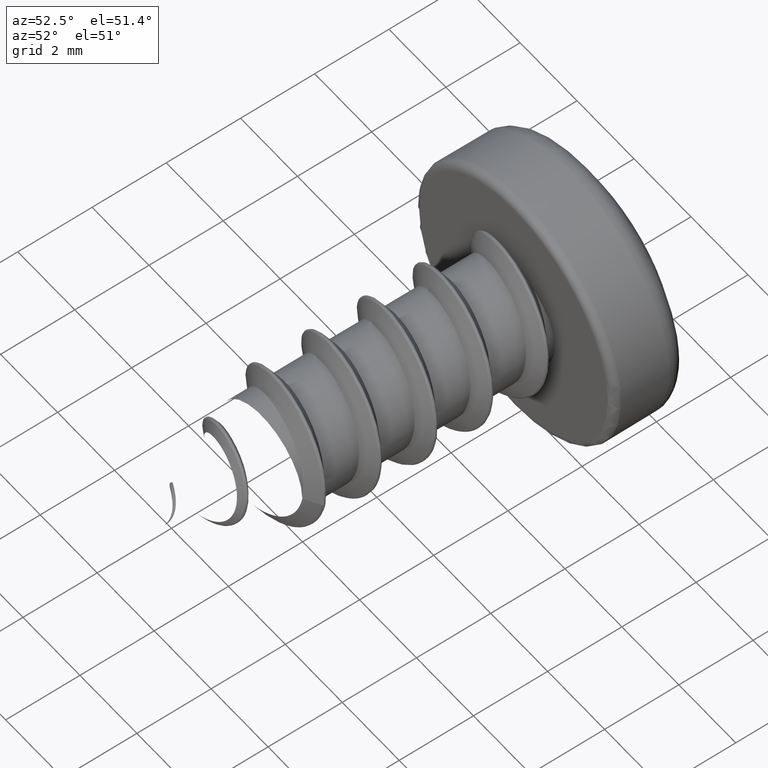
[diagram: clean part render]
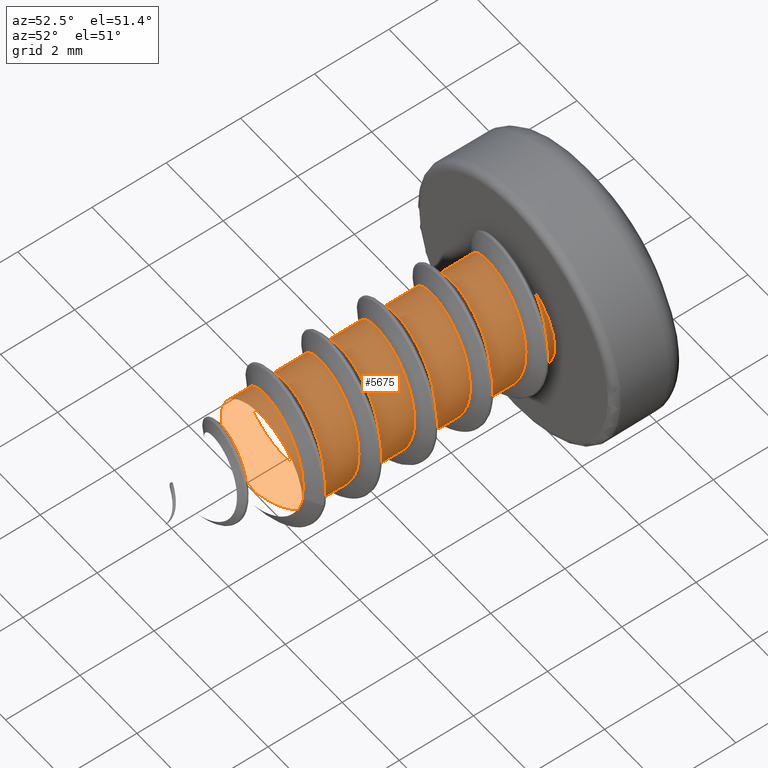
[diagram: same view with one face highlighted and labeled with its STEP entity id]
A machine part, auxiliary view. The second image highlights one B-rep face of the part: STEP entity #5675.
In plain terms, the highlighted cylindrical surface (bore or boss wall) has radius 1.425 mm, axis along (-0, -1, -0).
Its self-contained STEP definition (entity closure, byte-faithful):
#3 = CARTESIAN_POINT ( 'NONE',  ( -0.09987665471453638366, 1.008339647664638905, -1.437113781121196920 ) ) ;
#15 = CARTESIAN_POINT ( 'NONE',  ( 0.2910724249127586427, -2.985507007251310796, -1.398683227082746283 ) ) ;
#20 = CARTESIAN_POINT ( 'NONE',  ( 1.390660957467009240, 1.894527664016010693, -0.3246315666782226828 ) ) ;
#22 = AXIS2_PLACEMENT_3D ( 'NONE', #6139, #5676, #2725 ) ;
#28 = CARTESIAN_POINT ( 'NONE',  ( 0.3459861439554179352, 1.717507204482072503, 1.386393949257844538 ) ) ;
#40 = CARTESIAN_POINT ( 'NONE',  ( 1.424999999999999822, 0.4385543612399957492, -0.06250880097936052648 ) ) ;
#42 = CARTESIAN_POINT ( 'NONE',  ( -0.06250880102321956788, 2.333411150226696762, 1.425000000000000044 ) ) ;
#49 = CARTESIAN_POINT ( 'NONE',  ( 1.174309526311028140, 3.045790213789427270, 0.8140625197956702364 ) ) ;
#50 = VERTEX_POINT ( 'NONE', #3637 ) ;
#59 = CARTESIAN_POINT ( 'NONE',  ( -0.6923341550841431991, -2.603523856270646419, 1.250005122212090480 ) ) ;
#66 = CARTESIAN_POINT ( 'NONE',  ( 1.325400946962467019, 2.991363288109147422, 0.5339721996070398990 ) ) ;
#77 = CARTESIAN_POINT ( 'NONE',  ( 0.06250880100636435621, 0.8135543612353525189, 1.425000000000000044 ) ) ;
#87 = CARTESIAN_POINT ( 'NONE',  ( -1.007627163190830011, -1.989017244269857487, 1.007627163190830233 ) ) ;
#97 = CARTESIAN_POINT ( 'NONE',  ( -0.6599064451769568462, 0.9385543612353579590, 1.269066685926948379 ) ) ;
#114 = CARTESIAN_POINT ( 'NONE',  ( -0.3246315668476871807, 0.8774378474723205645, 1.390660957427449995 ) ) ;
#116 = CARTESIAN_POINT ( 'NONE',  ( 1.422419339735376154, -1.578174985472982739, 0.1363423541629372182 ) ) ;
#150 = CARTESIAN_POINT ( 'NONE',  ( 0.7966179178529966265, -1.366304757443552065, 1.200373468168141500 ) ) ;
#162 = CARTESIAN_POINT ( 'NONE',  ( 1.359065782162213409, 3.374952093233512862, -0.4356419855312274603 ) ) ;
#175 = CARTESIAN_POINT ( 'NONE',  ( -1.344567546616423082, -2.267905563840935113, -0.4835541455109310660 ) ) ;
#184 = CARTESIAN_POINT ( 'NONE',  ( 1.223514769974986427, 3.319293344239979682, -0.7309698405984298430 ) ) ;
#199 = CARTESIAN_POINT ( 'NONE',  ( -0.01145021896267220916, -1.222926698314638516, 1.428870911705670377 ) ) ;
#206 = CARTESIAN_POINT ( 'NONE',  ( 1.030649513012355634, 3.630791189495263360, 0.9842123280150913978 ) ) ;
#222 = CARTESIAN_POINT ( 'NONE',  ( 1.270392826307617851, -0.2140749331128754818, -0.6541806550332229797 ) ) ;
#231 = CARTESIAN_POINT ( 'NONE',  ( 1.419585272883945093, 3.428389635163540561, -0.1241305224107639438 ) ) ;
#239 = CARTESIAN_POINT ( 'NONE',  ( 1.315034235997164735, -0.1960186298450618536, -0.5589884137323660740 ) ) ;
#250 = CARTESIAN_POINT ( 'NONE',  ( 1.414404026340504217, 3.419632780394282534, -0.1777907105722833503 ) ) ;
#251 = CARTESIAN_POINT ( 'NONE',  ( 0.000000000000000000, 3.700000000000000178, 0.000000000000000000 ) ) ;
#262 = CARTESIAN_POINT ( 'NONE',  ( 1.425000000000000266, -1.041588849763399383, 0.06250880107918076189 ) ) ;
#263 = CARTESIAN_POINT ( 'NONE',  ( -0.02562295694757490971, -0.4788250891305084744, -1.428717935387212590 ) ) ;
#301 = CARTESIAN_POINT ( 'NONE',  ( 0.000000000000000000, -6.299999999999999822, 0.000000000000000000 ) ) ;
#302 = CARTESIAN_POINT ( 'NONE',  ( -1.104297114837050175, -0.4663121525339576356, 0.9054564787274880233 ) ) ;
#325 = CARTESIAN_POINT ( 'NONE',  ( 1.104297114839397853, -0.8867223360069257376, 0.9054564787246248692 ) ) ;
#330 = CARTESIAN_POINT ( 'NONE',  ( -1.363989981798405360, 2.626054361264572368, 0.4307413368989326252 ) ) ;
#355 = CARTESIAN_POINT ( 'NONE',  ( 0.9634937996418354578, 3.250991003145136116, -1.050608471008282585 ) ) ;
#396 = CARTESIAN_POINT ( 'NONE',  ( -0.9634267661071908018, 2.895911150225793484, -1.051827560274469775 ) ) ;
#416 = CARTESIAN_POINT ( 'NONE',  ( 1.523962906371049336E-08, 1.573482758150650529, -1.424999999999999822 ) ) ;
#427 = CARTESIAN_POINT ( 'NONE',  ( 0.7404430175993651497, 1.644932090007611869, 1.235555343368547554 ) ) ;
#438 = CARTESIAN_POINT ( 'NONE',  ( -0.1405865125951098749, 1.550780258339440776, -1.421111883415010935 ) ) ;
#447 = CARTESIAN_POINT ( 'NONE',  ( -0.9472921333812492906, 2.353790902308045219, -1.085203848282680683 ) ) ;
#457 = CARTESIAN_POINT ( 'NONE',  ( 0.8888489549387126321, 1.186320475606509772, -1.118799972695244449 ) ) ;
#458 = CARTESIAN_POINT ( 'NONE',  ( 0.06250880102321994258, 2.313554361233590040, 1.424999999999999822 ) ) ;
#465 = CARTESIAN_POINT ( 'NONE',  ( 0.1376796028442892061, 1.752952464097291108, 1.422265418727651332 ) ) ;
#479 = CARTESIAN_POINT ( 'NONE',  ( -1.269066685918629700, 1.083411150221474717, 0.6599064451970411138 ) ) ;
#481 = CARTESIAN_POINT ( 'NONE',  ( -0.6599064453214759096, 2.438554361261116465, 1.269066685867086708 ) ) ;
#498 = CARTESIAN_POINT ( 'NONE',  ( 0.1266801997864488716, -2.744452804200441243, 1.435150432561871581 ) ) ;
#500 = CARTESIAN_POINT ( 'NONE',  ( 0.3246168395531841555, 1.627435253098905354, -1.390664395239023188 ) ) ;
#507 = CARTESIAN_POINT ( 'NONE',  ( -1.428014480616729420, 2.141866009883426347, 0.04996333838694801827 ) ) ;
#514 = CARTESIAN_POINT ( 'NONE',  ( 1.051827560258694616, 0.6260543612371241018, 0.9634267661229658497 ) ) ;
#517 = CARTESIAN_POINT ( 'NONE',  ( 1.421110394537046684, 1.925777664016010693, -0.1406015620317624948 ) ) ;
#527 = CARTESIAN_POINT ( 'NONE',  ( 0.7713478661076452747, -2.869592576071958057, -1.215508522049268070 ) ) ;
#532 = CARTESIAN_POINT ( 'NONE',  ( -0.06250880100636413417, 0.8334111502249315073, 1.425000000000000044 ) ) ;
#554 = CARTESIAN_POINT ( 'NONE',  ( 1.104297114833286075, 0.2836878474650239013, -0.9054564787320783514 ) ) ;
#565 = CARTESIAN_POINT ( 'NONE',  ( 1.041978850163929993, 3.080493471072495382, 0.9777426683601172508 ) ) ;
#568 = CARTESIAN_POINT ( 'NONE',  ( -1.425000000000000044, -1.801517244269857487, 1.745121688784978277E-16 ) ) ;
#575 = B_SPLINE_CURVE_WITH_KNOTS ( 'NONE', 3,
 ( #5648, #2267, #5598, #2758, #6112, #1794, #863, #3239, #396, #4223, #3718, #4198, #4690, #1373, #1814, #3657, #5178, #1836, #6047, #3182, #330, #5754, #4244, #1942, #2822, #5712, #2350, #5260, #481, #1476, #943, #4820, #42, #458, #1396, #3367, #2847, #4307, #3845, #920, #3805, #1904, #2391, #4735, #3824, #5734, #2872, #1459, #3305, #1856, #517, #20, #964, #2895, #6180, #2374, #5219, #3347, #3787, #4264, #1001, #2435, #500, #5296, #982, #5689 ),
 .UNSPECIFIED., .F., .F.,
 ( 4, 2, 2, 2, 2, 2, 2, 2, 2, 2, 2, 2, 2, 2, 2, 2, 2, 2, 2, 2, 2, 2, 2, 2, 2, 2, 2, 2, 2, 2, 2, 2, 4 ),
 ( 0.000000000000000000, 0.03125000000000000694, 0.06250000000000001388, 0.09375000000000002776, 0.1250000000000000278, 0.1562500000000000278, 0.1875000000000000555, 0.2187500000000000555, 0.2500000000000000555, 0.2812500000000000555, 0.3125000000000000555, 0.3437500000000000555, 0.3750000000000001110, 0.4062500000000001110, 0.4375000000000001110, 0.4687500000000001110, 0.5000000000000001110, 0.5312500000000001110, 0.5625000000000001110, 0.5937500000000001110, 0.6250000000000001110, 0.6562500000000000000, 0.6874999999999998890, 0.7187499999999998890, 0.7499999999999998890, 0.7812500000000000000, 0.8125000000000000000, 0.8437500000000000000, 0.8750000000000000000, 0.9062500000000000000, 0.9375000000000000000, 0.9687500000000000000, 1.000000000000000000 ),
 .UNSPECIFIED. ) ;
#588 = CARTESIAN_POINT ( 'NONE',  ( -0.1055934554151159444, 3.291775355385210933, 1.425060249694208414 ) ) ;
#591 = CARTESIAN_POINT ( 'NONE',  ( 0.7010768074048928655, 3.700000000993649341, 1.240611264707427663 ) ) ;
#596 = CARTESIAN_POINT ( 'NONE',  ( -1.425000000000000044, -0.2915888497741651597, -0.06250880101161258862 ) ) ;
#600 = CARTESIAN_POINT ( 'NONE',  ( -1.216226022611091473, -2.213681026777018612, -0.7717935333644971863 ) ) ;
#609 = CARTESIAN_POINT ( 'NONE',  ( 1.435059086184683474, 2.919424448711136488, 0.1264638354089272221 ) ) ;
#617 = CARTESIAN_POINT ( 'NONE',  ( -0.6599064452237565215, -0.04158884978378075276, -1.269066685907563219 ) ) ;
#621 = CIRCLE ( 'NONE', #22, 1.425000000000000044 ) ;
#638 = CARTESIAN_POINT ( 'NONE',  ( -0.06249874047768818469, 0.06355609080300680946, -1.425000000000000266 ) ) ;
#645 = CARTESIAN_POINT ( 'NONE',  ( -1.437160046621686282, -0.8335888320132174290, -0.09828861475873809650 ) ) ;
#652 = CARTESIAN_POINT ( 'NONE',  ( 0.9741105578384741115, 3.643756996531818171, 1.040316418861468195 ) ) ;
#664 = CARTESIAN_POINT ( 'NONE',  ( 1.224778679930412784, -1.469923742781206411, 0.7360317319688218785 ) ) ;
#676 = B_SPLINE_CURVE_WITH_KNOTS ( 'NONE', 3,
 ( #1032, #638, #3457, #1115, #4849, #617, #4383, #1520, #3937, #4871, #5492, #5351, #1559, #2487, #5828, #3436, #596, #4637, #1687, #3172, #2233, #5556, #3153, #302, #826, #4087, #2667, #3586, #6040, #5132, #1750, #758, #778, #2255, #1241, #3605, #4107, #4573, #2216, #2709, #5045, #6059, #325, #4147, #2198, #2626, #3650, #3130, #262, #1705, #4616, #5067, #5532, #6015, #812, #5971, #2174, #2648, #5574, #5111, #2687, #4548, #3113, #4068, #1220, #5514 ),
 .UNSPECIFIED., .F., .F.,
 ( 4, 2, 2, 2, 2, 2, 2, 2, 2, 2, 2, 2, 2, 2, 2, 2, 2, 2, 2, 2, 2, 2, 2, 2, 2, 2, 2, 2, 2, 2, 2, 2, 4 ),
 ( 0.000000000000000000, 0.03125000000000000000, 0.06249999999999999306, 0.09375000000000000000, 0.1250000000000000000, 0.1562500000000000000, 0.1875000000000000000, 0.2187500000000000000, 0.2500000000000000000, 0.2812500000000000000, 0.3125000000000000000, 0.3437500000000000000, 0.3750000000000000000, 0.4062500000000000000, 0.4375000000000000000, 0.4687500000000000000, 0.5000000000000000000, 0.5312500000000000000, 0.5625000000000000000, 0.5937500000000000000, 0.6250000000000000000, 0.6562500000000000000, 0.6875000000000000000, 0.7187500000000000000, 0.7500000000000000000, 0.7812500000000000000, 0.8125000000000000000, 0.8437500000000000000, 0.8750000000000000000, 0.9062500000000000000, 0.9375000000000000000, 0.9687500000000000000, 1.000000000000000000 ),
 .UNSPECIFIED. ) ;
#677 = CARTESIAN_POINT ( 'NONE',  ( 1.425892833847399066, 3.449142901226313729, 0.005006227687794354703 ) ) ;
#679 = CARTESIAN_POINT ( 'NONE',  ( 1.425000000000000044, -3.100000000000000533, 0.000000000000000000 ) ) ;
#688 = CARTESIAN_POINT ( 'NONE',  ( 1.276432496422353013, -1.488228126667585638, 0.6421821976474565430 ) ) ;
#700 = CARTESIAN_POINT ( 'NONE',  ( 1.353302991233749974, 3.526047747974040192, 0.4586548663358586686 ) ) ;
#702 = DIRECTION ( 'NONE',  ( 0.000000000000000000, 0.000000000000000000, -1.000000000000000000 ) ) ;
#716 = CARTESIAN_POINT ( 'NONE',  ( 1.083263062836580914, 0.07050440052589070083, 0.9319515000232673207 ) ) ;
#717 =( BOUNDED_CURVE ( )  B_SPLINE_CURVE ( 2, ( #3397, #2923, #4845, #2462, #5804, #3475, #87, #3414, #568, #1049, #4377, #1994, #5344 ),
 .UNSPECIFIED., .F., .F. ) 
 B_SPLINE_CURVE_WITH_KNOTS ( ( 3, 2, 2, 2, 2, 2, 3 ),
 ( 0.000000000000000000, 0.02757168944005138067, 0.05514337888010276134, 0.08271506832015414201, 0.1102867577602055227, 0.1378584472002568895, 0.1654301358491133689 ),
 .UNSPECIFIED. ) 
 CURVE ( )  GEOMETRIC_REPRESENTATION_ITEM ( )  RATIONAL_B_SPLINE_CURVE ( ( 1.000000000000000000, 0.9238795325112867385, 1.000000000000000000, 0.9238795325112867385, 1.000000000000000000, 0.9238795325112867385, 1.000000000000000000, 0.9238795325112867385, 1.000000000000000000, 0.9238795325112867385, 1.000000000000000000, 0.9238795325112867385, 1.000000000000000000 ) ) 
 REPRESENTATION_ITEM ( '' )  );
#727 = CARTESIAN_POINT ( 'NONE',  ( 1.150009730013456632, 3.296491917275023997, -0.8423804514387858156 ) ) ;
#739 = CARTESIAN_POINT ( 'NONE',  ( -1.137600250853696426, 0.4937586672838104040, 0.8646577670982275032 ) ) ;
#748 = CARTESIAN_POINT ( 'NONE',  ( 1.050530053490670745, 3.270919207229500802, -0.9628318625110797724 ) ) ;
#758 = CARTESIAN_POINT ( 'NONE',  ( -0.1406015621685149652, -0.6538121525339586348, 1.421110394523517728 ) ) ;
#759 = CARTESIAN_POINT ( 'NONE',  ( 0.6864264475115349207, -0.3546760162037571606, -1.253255485451035822 ) ) ;
#778 = CARTESIAN_POINT ( 'NONE',  ( -0.06250880096024905019, -0.6665888497827113790, 1.425000000000000044 ) ) ;
#786 = CARTESIAN_POINT ( 'NONE',  ( 0.6581013731074591977, 3.188426728014408074, -1.264926107093796270 ) ) ;
#812 = CARTESIAN_POINT ( 'NONE',  ( 1.212894975646969797, -1.185062152524589907, -0.7537966110015035248 ) ) ;
#826 = CARTESIAN_POINT ( 'NONE',  ( -1.051827560249035454, -0.4790888497792581413, 0.9634267661326249010 ) ) ;
#841 = EDGE_CURVE ( 'NONE', #5299, #5220, #575, .T. ) ;
#863 = CARTESIAN_POINT ( 'NONE',  ( -0.7537966110081673055, 2.939937847473637955, -1.212894975642828221 ) ) ;
#920 = CARTESIAN_POINT ( 'NONE',  ( 0.9054564786856054148, 2.158687847473632182, 1.104297114871391372 ) ) ;
#928 = CARTESIAN_POINT ( 'NONE',  ( -0.7730624465119054767, 2.388429375200506577, -1.215464345978062077 ) ) ;
#940 = CARTESIAN_POINT ( 'NONE',  ( -0.3246168396879988149, 1.519530258339439222, -1.390664395207553028 ) ) ;
#941 = CARTESIAN_POINT ( 'NONE',  ( -0.3149503121235349146, 0.9736987736443121211, -1.405578674395822070 ) ) ;
#943 = CARTESIAN_POINT ( 'NONE',  ( -0.3246315666187051252, 2.377437847433684137, 1.390660957480902349 ) ) ;
#951 = CARTESIAN_POINT ( 'NONE',  ( -0.4845804968605427754, 2.442718897307616821, -1.344208046657995315 ) ) ;
#961 = CARTESIAN_POINT ( 'NONE',  ( -1.051827560266274997, 1.020911150224932618, 0.9634267661153861351 ) ) ;
#964 = CARTESIAN_POINT ( 'NONE',  ( 1.363989981773525262, 1.876054361253608693, -0.4307413369589966345 ) ) ;
#968 = CARTESIAN_POINT ( 'NONE',  ( 0.4517211426367370719, 2.601312637941103123, -1.355599212259509745 ) ) ;
#982 = CARTESIAN_POINT ( 'NONE',  ( 0.06249874038558737854, 1.583409420642650556, -1.424999999999999822 ) ) ;
#986 = CARTESIAN_POINT ( 'NONE',  ( -1.310756236041002332, 2.247875854946289831, -0.5689095830753775340 ) ) ;
#999 = CARTESIAN_POINT ( 'NONE',  ( -0.4001750634725572686, -2.657935924156614504, 1.371734112739506184 ) ) ;
#1001 = CARTESIAN_POINT ( 'NONE',  ( 0.6599157399785509082, 1.688556090817634914, -1.269062835894068986 ) ) ;
#1018 = CARTESIAN_POINT ( 'NONE',  ( 1.390660957438523804, 0.5024378474640699421, 0.3246315668002470178 ) ) ;
#1032 = CARTESIAN_POINT ( 'NONE',  ( -7.018736708850197573E-09, 0.07348275461535788700, -1.424999999999999822 ) ) ;
#1035 = CARTESIAN_POINT ( 'NONE',  ( 0.9054564787399663750, 0.2382776639968777477, -1.104297114826818804 ) ) ;
#1047 = CARTESIAN_POINT ( 'NONE',  ( -1.324339535428027403, 3.558164633257344889, 0.5365047774162952088 ) ) ;
#1049 = CARTESIAN_POINT ( 'NONE',  ( -1.425000000000000266, -1.707767244269857487, -0.5902543263816603103 ) ) ;
#1056 = CARTESIAN_POINT ( 'NONE',  ( 1.390660957436668177, 0.3945276639949219510, -0.3246315668081966588 ) ) ;
#1057 = CARTESIAN_POINT ( 'NONE',  ( 0.4363355111034195044, -2.798533320322205142, 1.360700639753371410 ) ) ;
#1076 = CARTESIAN_POINT ( 'NONE',  ( 1.051827560241446635, 0.2709111502189854859, -0.9634267661402138305 ) ) ;
#1077 = CARTESIAN_POINT ( 'NONE',  ( -0.4308089520024380170, -1.153254178296192478, 1.374528324818148128 ) ) ;
#1088 = CARTESIAN_POINT ( 'NONE',  ( 0.7993615835093629274, 3.132211123597497426, 1.184438654830298532 ) ) ;
#1101 = CARTESIAN_POINT ( 'NONE',  ( -1.221460072660616847, -2.481164390625421490, 0.7415080579728723364 ) ) ;
#1115 = CARTESIAN_POINT ( 'NONE',  ( -0.3246168396880060869, 0.01953025833943863171, -1.390664395207552362 ) ) ;
#1119 = CARTESIAN_POINT ( 'NONE',  ( 0.6666882384633244785, -1.859367034929765516, -1.276906718105214056 ) ) ;
#1130 = CARTESIAN_POINT ( 'NONE',  ( 1.139176319790490055, 3.603761477019975956, 0.8596690717310382368 ) ) ;
#1141 = CARTESIAN_POINT ( 'NONE',  ( -1.391958421355594666, -0.9034371914738859033, 0.3227567535461640658 ) ) ;
#1154 = CARTESIAN_POINT ( 'NONE',  ( 1.414784811273185117, 3.476358811722911391, 0.1710874629322105822 ) ) ;
#1165 = CARTESIAN_POINT ( 'NONE',  ( -1.117941622229914111, -1.011545332455152657, 0.8899091236304672581 ) ) ;
#1174 = CARTESIAN_POINT ( 'NONE',  ( 1.017512062032911224, 3.633854636514527670, 0.9977206334446709901 ) ) ;
#1184 = CARTESIAN_POINT ( 'NONE',  ( -0.2370069902688616004, -0.5136861850138934038, -1.409155478073137013 ) ) ;
#1192 = CARTESIAN_POINT ( 'NONE',  ( 1.097243547518014672, 3.614707858322080636, 0.9107991273188279502 ) ) ;
#1201 = CARTESIAN_POINT ( 'NONE',  ( 1.383081309023763250, -0.1597751065211534816, -0.3589835388437592756 ) ) ;
#1209 = CARTESIAN_POINT ( 'NONE',  ( 1.047778547869057775, 3.270261538904725374, -0.9658388584230855889 ) ) ;
#1220 = CARTESIAN_POINT ( 'NONE',  ( 0.06249874045187941290, -1.416590579346820089, -1.424999999999999822 ) ) ;
#1221 = CARTESIAN_POINT ( 'NONE',  ( 1.439219688535623654, -0.08954676505598106739, 0.05992406175999697576 ) ) ;
#1241 = CARTESIAN_POINT ( 'NONE',  ( 0.1406015621359922307, -0.6992223360005764832, 1.421110394526735599 ) ) ;
#1249 = CARTESIAN_POINT ( 'NONE',  ( 0.5661331281319711417, 3.171052076765829231, -1.308009181739254512 ) ) ;
#1260 = DIRECTION ( 'NONE',  ( 0.000000000000000000, 0.000000000000000000, -1.000000000000000000 ) ) ;
#1313 = CARTESIAN_POINT ( 'NONE',  ( 0.2767173354119162876, 3.118352415204838746, -1.411034836598612729 ) ) ;
#1324 = CARTESIAN_POINT ( 'NONE',  ( 1.425000000000000044, -2.551517244269857265, 0.000000000000000000 ) ) ;
#1373 = CARTESIAN_POINT ( 'NONE',  ( -1.363989981721719813, 2.770911150227612030, -0.4307413370840660893 ) ) ;
#1379 = CARTESIAN_POINT ( 'NONE',  ( -1.362157579284734688, 2.071406575702112285, 0.4687976433618111227 ) ) ;
#1391 = CARTESIAN_POINT ( 'NONE',  ( -2.617682533177467046E-16, 3.073482755730142291, -1.425000000000000044 ) ) ;
#1396 = CARTESIAN_POINT ( 'NONE',  ( 0.1406015622301901580, 2.300777663985314359, 1.421110394517415720 ) ) ;
#1400 = CARTESIAN_POINT ( 'NONE',  ( 0.1429004140499284259, 2.547905831525872244, -1.421823478474822267 ) ) ;
#1413 = CARTESIAN_POINT ( 'NONE',  ( -1.104297114792717860, 1.363277664004536982, -0.9054564787815557736 ) ) ;
#1415 = CARTESIAN_POINT ( 'NONE',  ( 0.6198621827492822867, 1.132497455230489170, -1.287518368892068388 ) ) ;
#1418 = B_SPLINE_CURVE_WITH_KNOTS ( 'NONE', 3,
 ( #2958, #1958, #5315, #3364, #3424, #5792, #5770, #1527, #3346, #2913, #1057, #498, #3844, #999, #4326, #59, #1474, #4819, #5294, #2512, #1101, #1545, #3503, #1628, #5892, #4897, #175, #600, #4978, #1584, #2111, #2988, #2972, #3441, #5852, #3527, #3957, #2028, #1119, #3940, #4958, #5372, #3483, #2584, #5450, #1604, #116, #5389, #2567, #688, #664, #3040, #4425, #150, #4916, #3920, #4445, #199, #2068, #1077, #4001, #3978, #4405, #1165, #5410, #2049, #2525, #1141, #5871, #645, #4933, #2543, #5431, #4463, #5972, #1648, #2649, #3114, #4069, #5995, #1184, #263, #5934, #3064, #3587, #3131, #759, #4531, #1668, #222, #239, #1201, #4021, #1221, #3546, #5046, #4506, #3564, #716, #5025, #2153, #5472, #5008, #1688, #5493, #4549, #2131, #2605, #5954, #2175, #3091, #2627, #739, #5515, #4047, #3057, #3551, #6045, #6089, #4221, #2373, #3326, #3786, #2846, #1881, #941, #3, #6179, #4263, #2821, #1415, #3302, #457, #4758, #5218, #2349, #5711, #5687, #5240, #4741, #3331, #5284, #4270, #5654, #5674, #3264, #427, #5205, #28, #465, #4231, #3792, #2334, #1444, #3811, #2877, #3744, #3768, #1379, #6161, #507, #5267, #3830, #2852, #986, #3284, #2829, #447, #928, #951, #2397, #4764, #4251, #1400, #1864, #968, #5225, #2357, #4786, #5696, #3311, #1425, #1910, #5840, #609, #5758, #66, #2902, #49, #565, #2460, #1088, #4333, #3865, #4411, #588, #3374, #2036, #3907, #1553, #5341, #5822, #1513, #1047, #5306, #3394, #4374, #4882 ),
 .UNSPECIFIED., .F., .F.,
 ( 4, 2, 2, 2, 2, 2, 2, 2, 2, 2, 2, 2, 2, 2, 2, 2, 2, 2, 2, 2, 2, 2, 2, 2, 2, 2, 2, 2, 2, 2, 2, 2, 2, 2, 2, 2, 2, 2, 2, 2, 2, 2, 2, 2, 2, 2, 2, 2, 2, 2, 2, 2, 2, 2, 2, 2, 2, 2, 2, 2, 2, 2, 2, 2, 2, 2, 2, 2, 2, 2, 2, 2, 2, 2, 2, 2, 2, 2, 2, 2, 2, 2, 2, 2, 2, 2, 2, 2, 2, 2, 2, 2, 2, 2, 2, 2, 2, 2, 2, 2, 2, 2, 2, 4 ),
 ( 0.000000000000000000, 0.0003200097240505572001, 0.0006400194481011144002, 0.001280038896202228800, 0.001600048620252786380, 0.001920058344303343526, 0.002560077792404458468, 0.002880087516455015831, 0.003200097240505573194, 0.003520106964556130990, 0.003840116688606687485, 0.004480136136707803078, 0.004800145860758360007, 0.005120155584808916936, 0.005760175032910031662, 0.006080184756960588591, 0.006400194481011146387, 0.006720204205061703316, 0.007040213929112261113, 0.007680233377213374103, 0.008000243101263931900, 0.008320252825314488829, 0.008960272273415604422, 0.009280281997466161351, 0.009600291721516718280, 0.009920301445567275209, 0.01024031116961783387, 0.01088033061771894947, 0.01120034034176950639, 0.01152035006582006332, 0.01216036951392117718, 0.01248037923797173585, 0.01280038896202229277, 0.01312039868607284970, 0.01344040841012340663, 0.01408042785822452223, 0.01440043758227507915, 0.01472044730632563608, 0.01504045703037619301, 0.01536046675442674821, 0.01568047647847730514, 0.01600048620252786380, 0.01632049592657841899, 0.01664050565062897766, 0.01728052509873009152, 0.01760053482278065018, 0.01792054454683120537, 0.01856056399493231923, 0.01888057371898287790, 0.01920058344303343656, 0.01952059316708399175, 0.01984060289113455042, 0.02048062233923566428, 0.02080063206328622294, 0.02112064178733677813, 0.02144065151138733680, 0.02176066123543789199, 0.02240068068353900932, 0.02272069040758956451, 0.02304070013164012318, 0.02368071957974123704, 0.02400072930379179570, 0.02432073902784235089, 0.02496075847594346475, 0.02528076819999402342, 0.02560077792404458208, 0.02592078764809513727, 0.02624079737214569594, 0.02688081682024680980, 0.02720082654429736499, 0.02752083626834792365, 0.02784084599239848232, 0.02816085571644903751, 0.02880087516455015137, 0.02912088488860071003, 0.02944089461265126870, 0.03008091406075238256, 0.03040092378480293775, 0.03072093350885349294, 0.03136095295695460333, 0.03168096268100516200, 0.03200097240505572066, 0.03232098212910627932, 0.03264099185315683799, 0.03328101130125794838, 0.03360102102530850704, 0.03392103074935906570, 0.03424104047340962437, 0.03456105019746017609, 0.03520106964556129342, 0.03552107936961185208, 0.03584108909366241075, 0.03648110854176352114, 0.03680111826581407980, 0.03712112798986463846, 0.03744113771391519713, 0.03776114743796574885, 0.03840116688606686618, 0.03872117661011742484, 0.03904118633416798351, 0.03968120578226909390, 0.04000121550631965256, 0.04032122523037021122, 0.04096124467847132855 ),
 .UNSPECIFIED. ) ;
#1425 = CARTESIAN_POINT ( 'NONE',  ( 1.338118137616291836, 2.814676993686885620, -0.5012099395159596016 ) ) ;
#1436 = CARTESIAN_POINT ( 'NONE',  ( -0.9054564786991515790, 0.9882776639879569114, 1.104297114860284479 ) ) ;
#1444 = CARTESIAN_POINT ( 'NONE',  ( -0.7725028752565945567, 1.912360547238205699, 1.202106600395943969 ) ) ;
#1455 = CARTESIAN_POINT ( 'NONE',  ( -0.9634267661655130377, 1.395911150213879903, -1.051827560216147761 ) ) ;
#1459 = CARTESIAN_POINT ( 'NONE',  ( 1.421110394536242882, 1.971187847445569075, 0.1406015620398932964 ) ) ;
#1473 = CARTESIAN_POINT ( 'NONE',  ( 0.9634267661229669599, 0.6459111502231617008, 1.051827560258694394 ) ) ;
#1474 = CARTESIAN_POINT ( 'NONE',  ( -0.7838183957097165644, -2.585355392945130948, 1.194706974125900878 ) ) ;
#1476 = CARTESIAN_POINT ( 'NONE',  ( -0.4307413369190342678, 2.395911150199170336, 1.363989981790078687 ) ) ;
#1504 = CARTESIAN_POINT ( 'NONE',  ( 0.3246168396780824139, 0.1274352531192317617, -1.390664395209868509 ) ) ;
#1513 = CARTESIAN_POINT ( 'NONE',  ( -1.231098440189440923, 3.522038657400608841, 0.7253338623360670034 ) ) ;
#1519 = CARTESIAN_POINT ( 'NONE',  ( 1.004358178716948213, -2.802915327783519928, -1.016042825512379011 ) ) ;
#1520 = CARTESIAN_POINT ( 'NONE',  ( -0.9054564787580737795, -0.09131215254074270815, -1.104297114811971570 ) ) ;
#1527 = CARTESIAN_POINT ( 'NONE',  ( 0.8150390486711976967, -2.870989499272721623, 1.173637936220293332 ) ) ;
#1544 = CARTESIAN_POINT ( 'NONE',  ( 1.269066685914546522, 0.5635543612408582259, 0.6599064452068983400 ) ) ;
#1545 = CARTESIAN_POINT ( 'NONE',  ( -1.365518931172796213, -2.426815724097467264, 0.4589974784024736243 ) ) ;
#1553 = CARTESIAN_POINT ( 'NONE',  ( -0.8026367578894321175, 3.417541260548690119, 1.196109386215741255 ) ) ;
#1554 = CARTESIAN_POINT ( 'NONE',  ( 0.7437776425341422470, 3.691630301551004578, 1.216480768472922858 ) ) ;
#1559 = CARTESIAN_POINT ( 'NONE',  ( -1.269066685928971205, -0.1864456387655509806, -0.6599064451720728641 ) ) ;
#1584 = CARTESIAN_POINT ( 'NONE',  ( -0.8455669846276423485, -2.127271058087803812, -1.151859199248368659 ) ) ;
#1604 = CARTESIAN_POINT ( 'NONE',  ( 1.428579054743302379, -1.594816500868761366, 0.03115305672361643602 ) ) ;
#1615 = CARTESIAN_POINT ( 'NONE',  ( 1.419269602627540650, 3.427821938450122730, -0.1276726862426658393 ) ) ;
#1628 = CARTESIAN_POINT ( 'NONE',  ( -1.427282494585959016, -2.338876930227930639, -0.06908592037962268950 ) ) ;
#1633 = CARTESIAN_POINT ( 'NONE',  ( 1.523962906371049336E-08, 1.573482758150650529, -1.424999999999999822 ) ) ;
#1637 = CARTESIAN_POINT ( 'NONE',  ( 1.417396096254144311, 3.472542369797881889, 0.1482336024597305513 ) ) ;
#1648 = CARTESIAN_POINT ( 'NONE',  ( -0.9041668753234146649, -0.6395597895624813845, -1.106543131704580407 ) ) ;
#1657 = CARTESIAN_POINT ( 'NONE',  ( 1.101542052679498340, 3.283528858953989715, -0.9042646800244151795 ) ) ;
#1663 = EDGE_CURVE ( 'NONE', #2880, #4928, #1418, .T. ) ;
#1668 = CARTESIAN_POINT ( 'NONE',  ( 1.104326895323508806, -0.2680456917275260698, -0.9251962810557327055 ) ) ;
#1676 = CARTESIAN_POINT ( 'NONE',  ( 1.401794781072761564, 3.406127187346270624, -0.2572719736464262885 ) ) ;
#1687 = CARTESIAN_POINT ( 'NONE',  ( -1.421110394519133457, -0.3242223360133957843, 0.1406015622128278242 ) ) ;
#1688 = CARTESIAN_POINT ( 'NONE',  ( 0.2774868242410553631, 0.2301696693656793968, 1.413491428820927487 ) ) ;
#1705 = CARTESIAN_POINT ( 'NONE',  ( 1.424999999999999822, -1.061445638776316258, -0.06250880107918095618 ) ) ;
#1750 = CARTESIAN_POINT ( 'NONE',  ( -0.3246315668120471898, -0.6225621525339586348, 1.390660957435769340 ) ) ;
#1794 = CARTESIAN_POINT ( 'NONE',  ( -0.6599064451661402764, 2.958411150225806807, -1.269066685931429683 ) ) ;
#1814 = CARTESIAN_POINT ( 'NONE',  ( -1.390660957419860733, 2.752437847476346455, -0.3246315668801963983 ) ) ;
#1836 = CARTESIAN_POINT ( 'NONE',  ( -1.424999999999999600, 2.688554361263666870, 0.06250880083342334748 ) ) ;
#1856 = CARTESIAN_POINT ( 'NONE',  ( 1.425000000000000044, 1.938554361254054337, -0.06250880089057349320 ) ) ;
#1864 = CARTESIAN_POINT ( 'NONE',  ( 0.2476702688169705457, 2.565505003120068572, -1.407252874549479671 ) ) ;
#1879 = CARTESIAN_POINT ( 'NONE',  ( -1.269066685903851965, 1.313554361244600566, -0.6599064452327175756 ) ) ;
#1881 = CARTESIAN_POINT ( 'NONE',  ( -0.6093804947662485594, 0.9194894685711353377, -1.292414577391557629 ) ) ;
#1899 = CARTESIAN_POINT ( 'NONE',  ( -1.104297114839530858, 1.033687847467139598, 0.9054564787244621105 ) ) ;
#1904 = CARTESIAN_POINT ( 'NONE',  ( 1.051827560151905372, 2.126054361262025516, 0.9634267662297558710 ) ) ;
#1910 = CARTESIAN_POINT ( 'NONE',  ( 1.371384938468898085, 2.832708851054427601, -0.4014600934844034796 ) ) ;
#1940 = CARTESIAN_POINT ( 'NONE',  ( 1.363989981742619984, 0.5209111502194267995, 0.4307413370336093394 ) ) ;
#1942 = CARTESIAN_POINT ( 'NONE',  ( -1.104297114690425907, 2.533687847428499840, 0.9054564789063113128 ) ) ;
#1958 = CARTESIAN_POINT ( 'NONE',  ( 1.425000000000000044, -3.083026735013615127, 0.1068644596377218009 ) ) ;
#1977 = CARTESIAN_POINT ( 'NONE',  ( 1.370445184466979383, -2.643423432364849113, -0.4035307085404408745 ) ) ;
#1994 = CARTESIAN_POINT ( 'NONE',  ( -0.5902543263816613095, -1.520267244269857487, -1.424999999999999822 ) ) ;
#1998 = CARTESIAN_POINT ( 'NONE',  ( -0.2212017914155754994, -3.100000000000000533, -1.407726808537274499 ) ) ;
#2003 = CARTESIAN_POINT ( 'NONE',  ( 0.9054564787052752362, 0.6586878474709702003, 1.104297114855263606 ) ) ;
#2027 = CARTESIAN_POINT ( 'NONE',  ( -0.1406015622049349989, 0.8461878474723195653, 1.421110394519915276 ) ) ;
#2028 = CARTESIAN_POINT ( 'NONE',  ( 0.4672563395708980161, -1.896681567075587216, -1.362616411645790171 ) ) ;
#2036 = CARTESIAN_POINT ( 'NONE',  ( -0.4160442779852034922, 3.344896744776076680, 1.366989217863234352 ) ) ;
#2049 = CARTESIAN_POINT ( 'NONE',  ( -1.287281630415405775, -0.9575952296090043392, 0.6203797144607406944 ) ) ;
#2068 = CARTESIAN_POINT ( 'NONE',  ( -0.1189845426003102447, -1.206030521705031555, 1.423918026374903611 ) ) ;
#2077 = CARTESIAN_POINT ( 'NONE',  ( 1.052659367300231574, 3.625537319649022372, 0.9604915445963853049 ) ) ;
#2096 = CARTESIAN_POINT ( 'NONE',  ( 1.284497628985328710, 3.341258668047709879, -0.6182600796434111201 ) ) ;
#2111 = CARTESIAN_POINT ( 'NONE',  ( -0.7564531625547447069, -2.109145919118023738, -1.212221513745739943 ) ) ;
#2120 = CARTESIAN_POINT ( 'NONE',  ( 1.421853685871860229, 3.432982711875377291, -0.09548635132353459898 ) ) ;
#2131 = CARTESIAN_POINT ( 'NONE',  ( -0.3581376194890358300, 0.3346275669736482050, 1.383281680166988048 ) ) ;
#2132 = EDGE_LOOP ( 'NONE', ( #5319, #3579, #3277, #5206, #5815, #4712, #2477, #5293, #5827 ) ) ;
#2142 = CARTESIAN_POINT ( 'NONE',  ( 1.080654062358158196, 3.278261506136040726, -0.9289391389370272867 ) ) ;
#2153 = CARTESIAN_POINT ( 'NONE',  ( 0.8501676612273065814, 0.1217741795277572231, 1.148453826847891213 ) ) ;
#2163 = CARTESIAN_POINT ( 'NONE',  ( 1.060362103245740428, 3.623674426145877536, 0.9519768989353744049 ) ) ;
#2174 = CARTESIAN_POINT ( 'NONE',  ( 1.051827560214025015, -1.229088849787431936, -0.9634267661676355621 ) ) ;
#2175 = CARTESIAN_POINT ( 'NONE',  ( -0.8345020507967721990, 0.4249796053698646214, 1.159976167239787470 ) ) ;
#2198 = CARTESIAN_POINT ( 'NONE',  ( 1.269066685919567616, -0.9364456387616815203, 0.6599064451947764809 ) ) ;
#2216 = CARTESIAN_POINT ( 'NONE',  ( 0.7537966110441375323, -0.8100621525314997129, 1.212894975620473215 ) ) ;
#2233 = CARTESIAN_POINT ( 'NONE',  ( -1.363989981739534452, -0.3739456387604570553, 0.4307413370410586029 ) ) ;
#2255 = CARTESIAN_POINT ( 'NONE',  ( 0.06250880096024941102, -0.6864456387570038176, 1.424999999999999822 ) ) ;
#2267 = CARTESIAN_POINT ( 'NONE',  ( -0.06249874056435087560, 3.063556090789242070, -1.425000000000000266 ) ) ;
#2333 = EDGE_CURVE ( 'NONE', #50, #5297, #3181, .T. ) ;
#2334 = CARTESIAN_POINT ( 'NONE',  ( -0.4934822457070696666, 1.858085551261065227, 1.353471151208146095 ) ) ;
#2349 = CARTESIAN_POINT ( 'NONE',  ( 1.293552595660258708, 1.290685020640009562, -0.6338048571096703832 ) ) ;
#2350 = CARTESIAN_POINT ( 'NONE',  ( -0.9054564788810465226, 2.488277664026607994, 1.104297114711141559 ) ) ;
#2357 = CARTESIAN_POINT ( 'NONE',  ( 0.8342957222756374192, 2.674002739855035227, -1.174326401951149013 ) ) ;
#2370 = CARTESIAN_POINT ( 'NONE',  ( -1.425000000000000266, 1.208411150226002650, -0.06250880101093637953 ) ) ;
#2373 = CARTESIAN_POINT ( 'NONE',  ( -1.179823209010164575, 0.7974530152229660773, -0.8268154365089149804 ) ) ;
#2374 = CARTESIAN_POINT ( 'NONE',  ( 1.104297114752401221, 1.783687847444947794, -0.9054564788307263301 ) ) ;
#2390 = CARTESIAN_POINT ( 'NONE',  ( -1.421110394519233822, 1.175777663986352417, 0.1406015622118153841 ) ) ;
#2391 = CARTESIAN_POINT ( 'NONE',  ( 1.104297114706124905, 2.113277664027966019, 0.9054564788871651837 ) ) ;
#2397 = CARTESIAN_POINT ( 'NONE',  ( -0.3820467999729195707, 2.461153023884612434, -1.376868529001978203 ) ) ;
#2409 = CARTESIAN_POINT ( 'NONE',  ( -0.4307413370781570383, 1.501054361232639023, -1.363989981724168077 ) ) ;
#2431 = CARTESIAN_POINT ( 'NONE',  ( 0.1406015622049756331, 0.8007776639879582437, 1.421110394519910836 ) ) ;
#2435 = CARTESIAN_POINT ( 'NONE',  ( 0.4307320422619550504, 1.645909420642650334, -1.363993831763098186 ) ) ;
#2460 = CARTESIAN_POINT ( 'NONE',  ( 0.9658948535297781079, 3.097116889796519335, 1.053053180125055110 ) ) ;
#2462 = CARTESIAN_POINT ( 'NONE',  ( 0.5902543263816606434, -2.270267244269857265, 1.425000000000000044 ) ) ;
#2477 = ORIENTED_EDGE ( 'NONE', *, *, #5427, .T. ) ;
#2487 = CARTESIAN_POINT ( 'NONE',  ( -1.363989981728194856, -0.2290888497741633556, -0.4307413370684359810 ) ) ;
#2511 = CARTESIAN_POINT ( 'NONE',  ( 1.421110394523906972, 0.4257776639949220621, -0.1406015621645805014 ) ) ;
#2512 = CARTESIAN_POINT ( 'NONE',  ( -1.163623456698173131, -2.498922256961408017, 0.8293556931821064460 ) ) ;
#2525 = CARTESIAN_POINT ( 'NONE',  ( -1.329374009374433729, -0.9395042135467516209, 0.5239130767046799031 ) ) ;
#2543 = CARTESIAN_POINT ( 'NONE',  ( -1.292908831030191052, -0.7446862159828996353, -0.6083464905426391178 ) ) ;
#2552 = CARTESIAN_POINT ( 'NONE',  ( 1.420459402121136527, 3.466844292983723985, 0.1137144600165637814 ) ) ;
#2567 = CARTESIAN_POINT ( 'NONE',  ( 1.356856260677240744, -1.524376163670924988, 0.4479051024037261630 ) ) ;
#2577 = CARTESIAN_POINT ( 'NONE',  ( 1.421098303902624593, 3.465493966466583142, 0.1054871792060549374 ) ) ;
#2584 = CARTESIAN_POINT ( 'NONE',  ( 1.353514578777666788, -1.683116450036934442, -0.4936947741141383683 ) ) ;
#2595 = CARTESIAN_POINT ( 'NONE',  ( 1.382514843096808610, 3.390830919864785464, -0.3453845058402515988 ) ) ;
#2605 = CARTESIAN_POINT ( 'NONE',  ( -0.5577259495277084866, 0.3707841629147555218, 1.315550275132917557 ) ) ;
#2613 = CARTESIAN_POINT ( 'NONE',  ( 1.419645501913055163, 3.468493212313715102, 0.1237421239722940325 ) ) ;
#2620 = EDGE_CURVE ( 'NONE', #4439, #5374, #676, .T. ) ;
#2626 = CARTESIAN_POINT ( 'NONE',  ( 1.363989981737599555, -0.9790888497780325661, 0.4307413370457304214 ) ) ;
#2627 = CARTESIAN_POINT ( 'NONE',  ( -1.069281294905565893, 0.4762270252943551774, 0.9478226196786818658 ) ) ;
#2637 = CARTESIAN_POINT ( 'NONE',  ( 1.385070316858366013, 3.392633809705840164, -0.3350988302343380076 ) ) ;
#2648 = CARTESIAN_POINT ( 'NONE',  ( 0.9634267661676352290, -1.248945638752282594, -1.051827560214025459 ) ) ;
#2649 = CARTESIAN_POINT ( 'NONE',  ( -0.8193849276660467584, -0.6218797589097004863, -1.170597869748025044 ) ) ;
#2659 = CARTESIAN_POINT ( 'NONE',  ( 0.5902504657980676139, 3.175571292149157454, -1.297249785526485288 ) ) ;
#2667 = CARTESIAN_POINT ( 'NONE',  ( -0.9054564787274906879, -0.5117223360057563397, 1.104297114837048177 ) ) ;
#2677 = CARTESIAN_POINT ( 'NONE',  ( 1.000415930570864642, 3.259072833399562441, -1.016664378246056266 ) ) ;
#2687 = CARTESIAN_POINT ( 'NONE',  ( 0.6599157399173074534, -1.311443909192894663, -1.269062835919436250 ) ) ;
#2709 = CARTESIAN_POINT ( 'NONE',  ( 0.9054564787183312369, -0.8413121525314998239, 1.104297114844558170 ) ) ;
#2717 = CARTESIAN_POINT ( 'NONE',  ( 0.5077903809092947363, 3.160269408154189552, -1.331595469862913106 ) ) ;
#2725 = DIRECTION ( 'NONE',  ( 0.000000000000000000, 0.000000000000000000, -1.000000000000000000 ) ) ;
#2758 = CARTESIAN_POINT ( 'NONE',  ( -0.3246168398148667755, 3.019530258318790406, -1.390664395177939605 ) ) ;
#2821 = CARTESIAN_POINT ( 'NONE',  ( 0.5226567025425237212, 1.114272855082645064, -1.329857502487160614 ) ) ;
#2822 = CARTESIAN_POINT ( 'NONE',  ( -1.051827560155626839, 2.520911150199167228, 0.9634267662260338483 ) ) ;
#2829 = CARTESIAN_POINT ( 'NONE',  ( -1.152448127600952388, 2.302101323982998604, -0.8447422729817923859 ) ) ;
#2843 = CARTESIAN_POINT ( 'NONE',  ( -1.424999999999999822, 1.188554361234282153, 0.06250880101093693464 ) ) ;
#2846 = CARTESIAN_POINT ( 'NONE',  ( -0.7046346958679934325, 0.9011157438136978559, -1.243097945251364411 ) ) ;
#2847 = CARTESIAN_POINT ( 'NONE',  ( 0.4307413370743504166, 2.251054361234481771, 1.363989981725745038 ) ) ;
#2852 = CARTESIAN_POINT ( 'NONE',  ( -1.349116719995781422, 2.229794732615783648, -0.4709594351868602313 ) ) ;
#2865 = CARTESIAN_POINT ( 'NONE',  ( 1.075937534604952894, -2.780384473834601078, -0.9399425624635784349 ) ) ;
#2869 = CARTESIAN_POINT ( 'NONE',  ( -0.7537966110230711614, 0.9570276639879564673, 1.212894975633565853 ) ) ;
#2872 = CARTESIAN_POINT ( 'NONE',  ( 1.390660957465150949, 2.002437847445570629, 0.3246315666861822602 ) ) ;
#2877 = CARTESIAN_POINT ( 'NONE',  ( -1.018171639328879996, 1.964507068031737358, 1.002576346409022490 ) ) ;
#2880 = VERTEX_POINT ( 'NONE', #679 ) ;
#2887 = CARTESIAN_POINT ( 'NONE',  ( 1.251802771672325898, -2.712887808348475538, -0.6886106251453084637 ) ) ;
#2891 = CARTESIAN_POINT ( 'NONE',  ( -0.4307413370635506111, 0.8959111502249280656, 1.363989981730218570 ) ) ;
#2895 = CARTESIAN_POINT ( 'NONE',  ( 1.269066685883647461, 1.833411150206680551, -0.6599064452814963344 ) ) ;
#2902 = CARTESIAN_POINT ( 'NONE',  ( 1.232035492467512539, 3.027657836188502483, 0.7238111117291029517 ) ) ;
#2913 = CARTESIAN_POINT ( 'NONE',  ( 0.5352163533097911152, -2.816595436560764831, 1.324875943240740650 ) ) ;
#2923 = CARTESIAN_POINT ( 'NONE',  ( 1.425000000000000044, -2.457767244269857265, 0.5902543263816605323 ) ) ;
#2933 = CARTESIAN_POINT ( 'NONE',  ( 1.212894975625058880, 0.5820276639906147853, 0.7537966110367593231 ) ) ;
#2958 = CARTESIAN_POINT ( 'NONE',  ( 1.425000000000000044, -3.100000000000000533, 0.000000000000000000 ) ) ;
#2972 = CARTESIAN_POINT ( 'NONE',  ( -0.4719325181837943362, -2.054970149494085074, -1.348799613614106940 ) ) ;
#2979 = CARTESIAN_POINT ( 'NONE',  ( 0.7010768074048928655, 3.700000000993649341, 1.240611264707427663 ) ) ;
#2988 = CARTESIAN_POINT ( 'NONE',  ( -0.5701492523652184063, -2.073109140636604675, -1.310203119960593021 ) ) ;
#3030 = CARTESIAN_POINT ( 'NONE',  ( 1.408408155024702069, 3.484452676252998149, 0.2192245369192157844 ) ) ;
#3040 = CARTESIAN_POINT ( 'NONE',  ( 1.102613381926072611, -1.434432530145229867, 0.9088835212911805517 ) ) ;
#3052 = CARTESIAN_POINT ( 'NONE',  ( 1.394591571776356842, 3.399949350412634796, -0.2930656361585928238 ) ) ;
#3057 = CARTESIAN_POINT ( 'NONE',  ( -1.426493840740907126, 0.6369872031965926329, 0.08254793828462975158 ) ) ;
#3064 = CARTESIAN_POINT ( 'NONE',  ( 0.2899493076173124684, -0.4272469006504983069, -1.399152440737974512 ) ) ;
#3077 = CARTESIAN_POINT ( 'NONE',  ( 1.291456799553104551, 3.553299013355041946, 0.6046126057336186355 ) ) ;
#3091 = CARTESIAN_POINT ( 'NONE',  ( -0.9182256162165762792, 0.4425651648400124594, 1.094802230420258038 ) ) ;
#3102 = CARTESIAN_POINT ( 'NONE',  ( 1.424144403058933417, 3.458464910303451489, 0.06249413147657989498 ) ) ;
#3113 = CARTESIAN_POINT ( 'NONE',  ( 0.3246168396502270848, -1.372564746885301723, -1.390664395216370419 ) ) ;
#3114 = CARTESIAN_POINT ( 'NONE',  ( -0.6386096049279261777, -0.5860862626888321270, -1.278228776408473877 ) ) ;
#3130 = CARTESIAN_POINT ( 'NONE',  ( 1.421110394522768994, -1.028812152532120106, 0.1406015621760818846 ) ) ;
#3131 = CARTESIAN_POINT ( 'NONE',  ( 0.5924151838400069092, -0.3727044906646680977, -1.300325029485247530 ) ) ;
#3143 = CARTESIAN_POINT ( 'NONE',  ( 0.8796336791677562550, 3.233185786528042449, -1.121137289867467857 ) ) ;
#3153 = CARTESIAN_POINT ( 'NONE',  ( -1.212894975614223991, -0.4350621525339576912, 0.7537966110541934883 ) ) ;
#3162 = CARTESIAN_POINT ( 'NONE',  ( 0.6973296334635229465, 3.196060738211595975, -1.243343798664785949 ) ) ;
#3172 = CARTESIAN_POINT ( 'NONE',  ( -1.390660957425646993, -0.3554723360133957843, 0.3246315668554097256 ) ) ;
#3181 = B_SPLINE_CURVE_WITH_KNOTS ( 'NONE', 3,
 ( #1998, #4381, #3871, #5785, #15, #5289, #527, #1519, #2865, #3854, #2887, #4848, #1977, #4304, #5330, #5275 ),
 .UNSPECIFIED., .F., .F.,
 ( 4, 2, 2, 2, 2, 2, 2, 4 ),
 ( 0.000000000000000000, 0.0003146649326235700407, 0.0006293298652471400814, 0.001258659730494280380, 0.001573324663117850420, 0.001887989595741420461, 0.002202654528364990719, 0.002517319460988560326 ),
 .UNSPECIFIED. ) ;
#3182 = CARTESIAN_POINT ( 'NONE',  ( -1.390660957486536953, 2.644527664030428493, 0.3246315665945667117 ) ) ;
#3183 = CARTESIAN_POINT ( 'NONE',  ( 0.1191107198294435038, 3.092401092258844741, -1.425000000000000266 ) ) ;
#3199 = CARTESIAN_POINT ( 'NONE',  ( 0.8867484252566616432, 3.234666176820048200, -1.115562852019114759 ) ) ;
#3239 = CARTESIAN_POINT ( 'NONE',  ( -0.9054564786855826553, 2.908687847473638843, -1.104297114871410024 ) ) ;
#3264 = CARTESIAN_POINT ( 'NONE',  ( 0.9179748163996951371, 1.609692200791692285, 1.110215065563124215 ) ) ;
#3277 = ORIENTED_EDGE ( 'NONE', *, *, #1663, .T. ) ;
#3284 = CARTESIAN_POINT ( 'NONE',  ( -1.212762358569236198, 2.283976524375272987, -0.7556106706981835508 ) ) ;
#3299 = CARTESIAN_POINT ( 'NONE',  ( -0.7537966110029240552, 1.439937847476397526, -1.212894975646086726 ) ) ;
#3302 = CARTESIAN_POINT ( 'NONE',  ( 0.8040893808469602444, 1.168748976217076407, -1.181259050101352681 ) ) ;
#3305 = CARTESIAN_POINT ( 'NONE',  ( 1.425000000000000044, 1.958411150206231799, 0.06250880089057307687 ) ) ;
#3311 = CARTESIAN_POINT ( 'NONE',  ( 1.249644751130876585, 2.778404642720428974, -0.6929354585084642748 ) ) ;
#3323 = CARTESIAN_POINT ( 'NONE',  ( -1.363989981738538804, 1.126054361238811641, 0.4307413370434619582 ) ) ;
#3326 = CARTESIAN_POINT ( 'NONE',  ( -0.9608831449657632140, 0.8485166630825862200, -1.057626576047908440 ) ) ;
#3331 = CARTESIAN_POINT ( 'NONE',  ( 1.396722201730709045, 1.449803587912686709, 0.3018526402805994935 ) ) ;
#3346 = CARTESIAN_POINT ( 'NONE',  ( 0.7244664089086452208, -2.852788893863840158, 1.231625443140602405 ) ) ;
#3347 = CARTESIAN_POINT ( 'NONE',  ( 0.9634267661954160067, 1.751054361253604252, -1.051827560186244348 ) ) ;
#3358 = CARTESIAN_POINT ( 'NONE',  ( -1.393832125675653621, 3.699579264778770415, -0.2964068238700390823 ) ) ;
#3364 = CARTESIAN_POINT ( 'NONE',  ( 1.366672697918315693, -3.029924610842897437, 0.4170379243982941242 ) ) ;
#3367 = CARTESIAN_POINT ( 'NONE',  ( 0.3246315668724008563, 2.269527663985313026, 1.390660957421681054 ) ) ;
#3374 = CARTESIAN_POINT ( 'NONE',  ( -0.2102283657104263570, 3.309157027461294032, 1.413349354281979942 ) ) ;
#3385 = CARTESIAN_POINT ( 'NONE',  ( -7.018736708850197573E-09, 0.07348275461535788700, -1.424999999999999822 ) ) ;
#3394 = CARTESIAN_POINT ( 'NONE',  ( -1.435275291392360320, 3.630550969780028225, 0.1267081568522249735 ) ) ;
#3397 = CARTESIAN_POINT ( 'NONE',  ( 1.425000000000000044, -2.551517244269857265, 0.000000000000000000 ) ) ;
#3405 = CARTESIAN_POINT ( 'NONE',  ( 1.212894975611089166, 0.3149378474650238457, -0.7537966110592355662 ) ) ;
#3414 = CARTESIAN_POINT ( 'NONE',  ( -1.425000000000000044, -1.895267244269857265, 0.5902543263816606434 ) ) ;
#3423 = CARTESIAN_POINT ( 'NONE',  ( 0.6599157398997280710, 0.1885560908040838923, -1.269062835926717980 ) ) ;
#3424 = CARTESIAN_POINT ( 'NONE',  ( 1.331422314600674062, -3.011460032026891387, 0.5186905778795463107 ) ) ;
#3436 = CARTESIAN_POINT ( 'NONE',  ( -1.421110394519131681, -0.2788121525263169143, -0.1406015622128441445 ) ) ;
#3441 = CARTESIAN_POINT ( 'NONE',  ( -0.2660758691659054764, -2.018643108555910004, -1.403988721910710336 ) ) ;
#3457 = CARTESIAN_POINT ( 'NONE',  ( -0.1405865125951174521, 0.05078025833943865253, -1.421111883415010269 ) ) ;
#3475 = CARTESIAN_POINT ( 'NONE',  ( -0.5902543263816604213, -2.082767244269857709, 1.425000000000000044 ) ) ;
#3483 = CARTESIAN_POINT ( 'NONE',  ( 1.201413491573861458, -1.737585686615935154, -0.7736332680942111795 ) ) ;
#3491 = CARTESIAN_POINT ( 'NONE',  ( 0.8904295529385902741, 3.661913022982894006, 1.113220107781816681 ) ) ;
#3503 = CARTESIAN_POINT ( 'NONE',  ( -1.418985881007884364, -2.390019430822436064, 0.2494730536253284559 ) ) ;
#3513 = CARTESIAN_POINT ( 'NONE',  ( 1.188582833853784493, 3.308089063450623701, -0.7860724971920008963 ) ) ;
#3527 = CARTESIAN_POINT ( 'NONE',  ( 0.04885702841789377193, -1.967038614094526405, -1.428061765139464701 ) ) ;
#3536 = CARTESIAN_POINT ( 'NONE',  ( 1.169850537896949039, 3.302277093382582684, -0.8142350032331191478 ) ) ;
#3537 = DIRECTION ( 'NONE',  ( -0.000000000000000000, -1.000000000000000000, -0.000000000000000000 ) ) ;
#3546 = CARTESIAN_POINT ( 'NONE',  ( 1.413850936330284247, -0.05543750667006532712, 0.2759494210986207507 ) ) ;
#3551 = CARTESIAN_POINT ( 'NONE',  ( -1.428703848747354233, 0.6537221808885074203, -0.02496920702964612257 ) ) ;
#3555 = CARTESIAN_POINT ( 'NONE',  ( 1.191939443617279659, 3.309136987702088639, -0.7809799323296707785 ) ) ;
#3564 = CARTESIAN_POINT ( 'NONE',  ( 1.149264062615003246, 0.05299548108276169733, 0.8490530444448748382 ) ) ;
#3575 = CARTESIAN_POINT ( 'NONE',  ( 1.332831751564033551, 3.361493016238685350, -0.5102972288982073890 ) ) ;
#3579 = ORIENTED_EDGE ( 'NONE', *, *, #3838, .F. ) ;
#3586 = CARTESIAN_POINT ( 'NONE',  ( -0.7537966110541969300, -0.5429723360057562287, 1.212894975614221327 ) ) ;
#3587 = CARTESIAN_POINT ( 'NONE',  ( 0.3940518996202587165, -0.4090251637689205078, -1.373507929629699476 ) ) ;
#3605 = CARTESIAN_POINT ( 'NONE',  ( 0.3246315667802212590, -0.7304723360005767052, 1.390660957443198509 ) ) ;
#3637 = CARTESIAN_POINT ( 'NONE',  ( -0.2212017914155754994, -3.100000000000000533, -1.407726808537274499 ) ) ;
#3639 = CARTESIAN_POINT ( 'NONE',  ( 0.9074944605266824782, 3.239020635574149320, -1.098752497432236241 ) ) ;
#3650 = CARTESIAN_POINT ( 'NONE',  ( 1.390660957434040723, -0.9975621525321204386, 0.3246315668194520443 ) ) ;
#3652 = B_SPLINE_CURVE_WITH_KNOTS ( 'NONE', 3,
 ( #2979, #1554, #4058, #3491, #3990, #652, #3967, #1174, #206, #5036, #2077, #4474, #2163, #1192, #1130, #5983, #4518, #5503, #3077, #700, #4010, #4494, #3030, #1154, #1637, #2613, #2552, #4992, #2577, #3102, #677, #4452, #2120, #4944, #4541, #231, #1615, #5458, #250, #4031, #1676, #3052, #5900, #2637, #2595, #5945, #4969, #162, #3575, #2096, #5420, #184, #5439, #5015, #3555, #3513, #3536, #727, #5923, #1657, #2142, #5480, #5962, #748, #1209, #2677, #355, #6049, #3639, #3199, #3143, #6026, #5523, #3162, #786, #2659, #1249, #3676, #2717, #4626, #4096, #4077, #1313, #3183, #4583 ),
 .UNSPECIFIED., .F., .F.,
 ( 4, 2, 2, 2, 1, 1, 2, 2, 2, 2, 2, 2, 2, 1, 1, 2, 2, 1, 1, 1, 1, 2, 2, 2, 2, 1, 1, 2, 2, 2, 1, 1, 1, 2, 2, 2, 2, 1, 2, 2, 2, 2, 2, 2, 2, 2, 1, 2, 2, 4 ),
 ( 0.000000000000000000, 0.06250000000000213718, 0.09375000000000331679, 0.1093750000000039135, 0.1171875000000042050, 0.1210937500000043160, 0.1230468750000043576, 0.1250000000000044131, 0.1875000000000027478, 0.2187500000000018874, 0.2500000000000010547, 0.3124999999999992784, 0.3437499999999984457, 0.3593749999999979461, 0.3671874999999977240, 0.3710937499999976685, 0.3749999999999975575, 0.4062499999999973355, 0.4218749999999972800, 0.4296874999999972244, 0.4335937499999972244, 0.4355468749999972244, 0.4374999999999972244, 0.4687499999999978906, 0.4843749999999981681, 0.4921874999999983347, 0.4960937499999984457, 0.4980468749999985012, 0.4999999999999985567, 0.5625000000000003331, 0.5937500000000013323, 0.6093750000000018874, 0.6171875000000019984, 0.6210937500000021094, 0.6250000000000022204, 0.6562500000000027756, 0.6718750000000028866, 0.6796875000000027756, 0.6835937500000028866, 0.6875000000000028866, 0.7187500000000028866, 0.7343750000000028866, 0.7500000000000028866, 0.8125000000000027756, 0.8437500000000027756, 0.8593750000000027756, 0.8671875000000026645, 0.8710937500000025535, 0.8750000000000024425, 1.000000000000000000 ),
 .UNSPECIFIED. ) ;
#3657 = CARTESIAN_POINT ( 'NONE',  ( -1.421110394516627462, 2.721187847476345567, -0.1406015622381571739 ) ) ;
#3676 = CARTESIAN_POINT ( 'NONE',  ( 0.5276262305513655937, 3.163922148548467206, -1.323793033447762335 ) ) ;
#3718 = CARTESIAN_POINT ( 'NONE',  ( -1.104297114871330754, 2.863277663986670163, -0.9054564786856793557 ) ) ;
#3744 = CARTESIAN_POINT ( 'NONE',  ( -1.090590057387250456, 1.981366803875034721, 0.9232052512768923469 ) ) ;
#3768 = CARTESIAN_POINT ( 'NONE',  ( -1.276231960009301059, 2.034124827244614853, 0.6679336952717982445 ) ) ;
#3784 = CARTESIAN_POINT ( 'NONE',  ( -0.9054564786808090293, 1.408687847476397748, -1.104297114875323782 ) ) ;
#3786 = CARTESIAN_POINT ( 'NONE',  ( -0.8803665483349188969, 0.8654677808956083851, -1.125503130462996548 ) ) ;
#3787 = CARTESIAN_POINT ( 'NONE',  ( 0.9054564788307143397, 1.738277664015335233, -1.104297114752410991 ) ) ;
#3792 = CARTESIAN_POINT ( 'NONE',  ( -0.2853058152622386379, 1.821158877828861433, 1.412174225631315450 ) ) ;
#3804 = CARTESIAN_POINT ( 'NONE',  ( -1.212894975616289228, 1.064937847467140708, 0.7537966110508701467 ) ) ;
#3805 = CARTESIAN_POINT ( 'NONE',  ( 0.9634267662297558710, 2.145911150198261286, 1.051827560151904928 ) ) ;
#3811 = CARTESIAN_POINT ( 'NONE',  ( -0.8588436118848934431, 1.930026787685296341, 1.142024722953506100 ) ) ;
#3824 = CARTESIAN_POINT ( 'NONE',  ( 1.269066685884727042, 2.063554361253192138, 0.6599064452788897528 ) ) ;
#3830 = CARTESIAN_POINT ( 'NONE',  ( -1.404049711831193425, 2.193569421843466927, -0.2656371970760950663 ) ) ;
#3838 = EDGE_CURVE ( 'NONE', #2880, #50, #621, .T. ) ;
#3841 = CARTESIAN_POINT ( 'NONE',  ( 0.7537966110679004128, 0.2070276639968776644, -1.212894975605704362 ) ) ;
#3844 = CARTESIAN_POINT ( 'NONE',  ( -0.09007038398306915772, -2.711534449577085226, 1.437772776151770016 ) ) ;
#3845 = CARTESIAN_POINT ( 'NONE',  ( 0.7537966110081935067, 2.189937847473631738, 1.212894975642811790 ) ) ;
#3854 = CARTESIAN_POINT ( 'NONE',  ( 1.199397470748139405, -2.735410164448825565, -0.7762598187883669176 ) ) ;
#3858 = CARTESIAN_POINT ( 'NONE',  ( 0.3246315668477255389, 0.7695276639879585767, 1.390660957427440891 ) ) ;
#3865 = CARTESIAN_POINT ( 'NONE',  ( 0.4242729767653397044, 3.204433141804503116, 1.376669330083735820 ) ) ;
#3871 = CARTESIAN_POINT ( 'NONE',  ( -0.01638429539609564944, -3.054979078370779089, -1.428591587245245709 ) ) ;
#3877 = CARTESIAN_POINT ( 'NONE',  ( 1.104297114850066652, 0.6132776639906148963, 0.9054564787116133884 ) ) ;
#3888 = AXIS2_PLACEMENT_3D ( 'NONE', #251, #3537, #702 ) ;
#3898 = CARTESIAN_POINT ( 'NONE',  ( 1.425000000000000044, 0.4584111502202897759, 0.06250880097936029056 ) ) ;
#3907 = CARTESIAN_POINT ( 'NONE',  ( -0.5176606496694403647, 3.363350775707499185, 1.331811570384855870 ) ) ;
#3920 = CARTESIAN_POINT ( 'NONE',  ( 0.3031059307476723919, -1.275022651446582556, 1.396418146858696696 ) ) ;
#3937 = CARTESIAN_POINT ( 'NONE',  ( -0.9634267661512367908, -0.1040888497837828552, -1.051827560230423897 ) ) ;
#3940 = CARTESIAN_POINT ( 'NONE',  ( 0.9222984494993190507, -1.806561746315675121, -1.091363969335181761 ) ) ;
#3957 = CARTESIAN_POINT ( 'NONE',  ( 0.1563986319789960611, -1.949850462686311792, -1.420306731292226621 ) ) ;
#3967 = CARTESIAN_POINT ( 'NONE',  ( 0.9913668388967336043, 3.639878487204077029, 1.023926670162811803 ) ) ;
#3978 = CARTESIAN_POINT ( 'NONE',  ( -0.8933695564734288608, -1.062723931046136938, 1.115188651350669025 ) ) ;
#3990 = CARTESIAN_POINT ( 'NONE',  ( 0.9232039662974357297, 3.654980351119167192, 1.086470412663510965 ) ) ;
#3997 = CYLINDRICAL_SURFACE ( 'NONE', #4902, 1.425000000000000044 ) ;
#4001 = CARTESIAN_POINT ( 'NONE',  ( -0.6324247837976400000, -1.115952651073721880, 1.294288786545695569 ) ) ;
#4010 = CARTESIAN_POINT ( 'NONE',  ( 1.378455204408236989, 3.510338801346888804, 0.3696364193489916627 ) ) ;
#4021 = CARTESIAN_POINT ( 'NONE',  ( 1.406104375318035338, -0.1416044447090609171, -0.2541166798403350913 ) ) ;
#4031 = CARTESIAN_POINT ( 'NONE',  ( 1.405514897524249962, 3.409821654048454942, -0.2356558814477271446 ) ) ;
#4047 = CARTESIAN_POINT ( 'NONE',  ( -1.385094013036097582, 0.5845544560842594883, 0.3955185636587783549 ) ) ;
#4058 = CARTESIAN_POINT ( 'NONE',  ( 0.7977945977007293576, 3.681062344990567947, 1.183276792785289189 ) ) ;
#4068 = CARTESIAN_POINT ( 'NONE',  ( 0.1405865125565098073, -1.403814746885301723, -1.421111883418830102 ) ) ;
#4069 = CARTESIAN_POINT ( 'NONE',  ( -0.5407909002279569499, -0.5676295651791030128, -1.322615335015927096 ) ) ;
#4077 = CARTESIAN_POINT ( 'NONE',  ( 0.4644377305899397013, 3.152367484235725659, -1.347204028641931339 ) ) ;
#4087 = CARTESIAN_POINT ( 'NONE',  ( -0.9634267661326243459, -0.4989456387604565002, 1.051827560249035676 ) ) ;
#4096 = CARTESIAN_POINT ( 'NONE',  ( 0.4730578151703507261, 3.153932808021225664, -1.344208565817707868 ) ) ;
#4106 = DIRECTION ( 'NONE',  ( -0.000000000000000000, -1.000000000000000000, -0.000000000000000000 ) ) ;
#4107 = CARTESIAN_POINT ( 'NONE',  ( 0.4307413370483373360, -0.7489456387620960776, 1.363989981736519752 ) ) ;
#4147 = CARTESIAN_POINT ( 'NONE',  ( 1.212894975616177540, -0.9179723360069259597, 0.7537966110510493367 ) ) ;
#4175 = CARTESIAN_POINT ( 'NONE',  ( -7.018736708850197573E-09, 0.07348275461535788700, -1.424999999999999822 ) ) ;
#4198 = CARTESIAN_POINT ( 'NONE',  ( -1.212894975642762496, 2.832027663986671939, -0.7537966110082731097 ) ) ;
#4221 = CARTESIAN_POINT ( 'NONE',  ( -1.290270619643874017, 0.7606457089416716055, -0.6408237529891752660 ) ) ;
#4223 = CARTESIAN_POINT ( 'NONE',  ( -1.051827560274470663, 2.876054361234494205, -0.9634267661071904687 ) ) ;
#4231 = CARTESIAN_POINT ( 'NONE',  ( 0.03250638580854675608, 1.769601947137823039, 1.428573046022370008 ) ) ;
#4244 = CARTESIAN_POINT ( 'NONE',  ( -1.212894975492157412, 2.564937847428501172, 0.7537966112506035987 ) ) ;
#4251 = CARTESIAN_POINT ( 'NONE',  ( -0.07036150678713246065, 2.513676254158525580, -1.427253232835900443 ) ) ;
#4259 = CARTESIAN_POINT ( 'NONE',  ( -1.051827560216147983, 1.376054361246405566, -0.9634267661655124826 ) ) ;
#4263 = CARTESIAN_POINT ( 'NONE',  ( 0.3217121492073125033, 1.078256058175662835, -1.392189749526415277 ) ) ;
#4264 = CARTESIAN_POINT ( 'NONE',  ( 0.7537966111675720171, 1.707027664015336343, -1.212894975543760578 ) ) ;
#4270 = CARTESIAN_POINT ( 'NONE',  ( 1.295202752258854284, 1.504384383429183014, 0.6034451148349989635 ) ) ;
#4287 = CARTESIAN_POINT ( 'NONE',  ( -0.9634267661153858020, 1.001054361235352186, 1.051827560266275219 ) ) ;
#4289 = EDGE_CURVE ( 'NONE', #6048, #5299, #3652, .T. ) ;
#4304 = CARTESIAN_POINT ( 'NONE',  ( 1.413846879374725196, -2.597405136205420462, -0.2049244691251765615 ) ) ;
#4307 = CARTESIAN_POINT ( 'NONE',  ( 0.6599064451661603714, 2.208411150225802366, 1.269066685931420579 ) ) ;
#4326 = CARTESIAN_POINT ( 'NONE',  ( -0.4999628034927472431, -2.639907431804259463, 1.338609944299014698 ) ) ;
#4333 = CARTESIAN_POINT ( 'NONE',  ( 0.7100578461574444944, 3.150050390648678533, 1.239997220122643240 ) ) ;
#4344 = CARTESIAN_POINT ( 'NONE',  ( 0.9634267661402134975, 0.2510543612412993175, -1.051827560241447079 ) ) ;
#4374 = CARTESIAN_POINT ( 'NONE',  ( -1.438210896657940774, 3.663080678375495225, -0.08777206838903084396 ) ) ;
#4377 = CARTESIAN_POINT ( 'NONE',  ( -1.007627163190830455, -1.614017244269857487, -1.007627163190830011 ) ) ;
#4381 = CARTESIAN_POINT ( 'NONE',  ( -0.1188225033146842052, -3.077446465720312663, -1.423814079017901024 ) ) ;
#4383 = CARTESIAN_POINT ( 'NONE',  ( -0.7537966110877885040, -0.06006215254074265264, -1.212894975593344471 ) ) ;
#4405 = CARTESIAN_POINT ( 'NONE',  ( -0.9748651563949475296, -1.045541505659436377, 1.044686386377200016 ) ) ;
#4411 = CARTESIAN_POINT ( 'NONE',  ( 0.2136168276975329849, 3.241063300490046206, 1.424878810027201848 ) ) ;
#4425 = CARTESIAN_POINT ( 'NONE',  ( 1.032654208799698603, -1.417788807285449426, 0.9876579253870654274 ) ) ;
#4439 = VERTEX_POINT ( 'NONE', #4175 ) ;
#4445 = CARTESIAN_POINT ( 'NONE',  ( 0.1995426864882970386, -1.257356786052046482, 1.414915512001306830 ) ) ;
#4452 = CARTESIAN_POINT ( 'NONE',  ( 1.423875151558966934, 3.438354839131967378, -0.06202278588227937151 ) ) ;
#4463 = CARTESIAN_POINT ( 'NONE',  ( -1.126329578692262023, -0.6906951996501393687, -0.8792770354266176147 ) ) ;
#4474 = CARTESIAN_POINT ( 'NONE',  ( 1.057068268147279611, 3.624473235913866276, 0.9556371839156256875 ) ) ;
#4494 = CARTESIAN_POINT ( 'NONE',  ( 1.402625536393881767, 3.490463226846437284, 0.2545639662699725747 ) ) ;
#4506 = CARTESIAN_POINT ( 'NONE',  ( 1.261518040723772272, 0.01733378756696195983, 0.6710224965140190179 ) ) ;
#4518 = CARTESIAN_POINT ( 'NONE',  ( 1.226887528034623420, 3.576802777192495064, 0.7262404911870339319 ) ) ;
#4531 = CARTESIAN_POINT ( 'NONE',  ( 0.9528873407445450638, -0.3009877542459004629, -1.080487405976792381 ) ) ;
#4541 = CARTESIAN_POINT ( 'NONE',  ( 1.419994419116173745, 3.429154474320366131, -0.1193590518640108566 ) ) ;
#4548 = CARTESIAN_POINT ( 'NONE',  ( 0.4307320423232021689, -1.354090579346820311, -1.363993831737729145 ) ) ;
#4549 = CARTESIAN_POINT ( 'NONE',  ( -0.2530002233220897123, 0.3164133527790989331, 1.406313608185303377 ) ) ;
#4573 = CARTESIAN_POINT ( 'NONE',  ( 0.6599064451921698993, -0.7915888497776191191, 1.269066685920646531 ) ) ;
#4583 = CARTESIAN_POINT ( 'NONE',  ( -2.617682533177467046E-16, 3.073482755730142291, -1.425000000000000044 ) ) ;
#4616 = CARTESIAN_POINT ( 'NONE',  ( 1.421110394509133679, -1.074222336029545311, -0.1406015623139025006 ) ) ;
#4626 = CARTESIAN_POINT ( 'NONE',  ( 0.4870694387627764188, 3.156485003331531480, -1.339195178730404612 ) ) ;
#4637 = CARTESIAN_POINT ( 'NONE',  ( -1.425000000000000044, -0.3114456387655492042, 0.06250880101161312985 ) ) ;
#4690 = CARTESIAN_POINT ( 'NONE',  ( -1.269066685935450023, 2.813554361232672552, -0.6599064451564334854 ) ) ;
#4712 = ORIENTED_EDGE ( 'NONE', *, *, #841, .T. ) ;
#4735 = CARTESIAN_POINT ( 'NONE',  ( 1.212894975505226292, 2.082027664027967351, 0.7537966112295750865 ) ) ;
#4741 = CARTESIAN_POINT ( 'NONE',  ( 1.415090754566027176, 1.432127736455179878, 0.1981731675032394613 ) ) ;
#4754 = CARTESIAN_POINT ( 'NONE',  ( -1.212894975577316625, 1.332027664004536094, -0.7537966111135783187 ) ) ;
#4758 = CARTESIAN_POINT ( 'NONE',  ( 1.043984362936602350, 1.220379394883495117, -0.9756344056778532003 ) ) ;
#4764 = CARTESIAN_POINT ( 'NONE',  ( -0.1753876763189558541, 2.496688287827629971, -1.418085281822308641 ) ) ;
#4786 = CARTESIAN_POINT ( 'NONE',  ( 1.001631039251450694, 2.707723383249622806, -1.035217286825495631 ) ) ;
#4801 = CARTESIAN_POINT ( 'NONE',  ( -1.363989981753317648, 1.270911150215684460, -0.4307413370077819437 ) ) ;
#4818 = CARTESIAN_POINT ( 'NONE',  ( 0.7537966110297964484, 0.6899378474709699782, 1.212894975629385863 ) ) ;
#4819 = CARTESIAN_POINT ( 'NONE',  ( -0.9507904973104093216, -2.550408936131036697, 1.066627142774008163 ) ) ;
#4820 = CARTESIAN_POINT ( 'NONE',  ( -0.1406015619709386211, 2.346187847433683693, 1.421110394543065647 ) ) ;
#4845 = CARTESIAN_POINT ( 'NONE',  ( 1.007627163190830233, -2.364017244269857265, 1.007627163190830233 ) ) ;
#4848 = CARTESIAN_POINT ( 'NONE',  ( 1.337686316991904878, -2.666767841403021144, -0.5017868965628345945 ) ) ;
#4849 = CARTESIAN_POINT ( 'NONE',  ( -0.4307413370167486599, 0.001054361244066830735, -1.363989981749604175 ) ) ;
#4853 = CARTESIAN_POINT ( 'NONE',  ( 0.6599064451817910903, 0.7084111502240275637, 1.269066685924946425 ) ) ;
#4871 = CARTESIAN_POINT ( 'NONE',  ( -1.051827560230424341, -0.1239456387559312450, -0.9634267661512364578 ) ) ;
#4882 = CARTESIAN_POINT ( 'NONE',  ( -1.393832125675653621, 3.699579264778770415, -0.2964068238700390823 ) ) ;
#4895 = CARTESIAN_POINT ( 'NONE',  ( 1.421110394524710552, 0.4711878474640697756, 0.1406015621564557505 ) ) ;
#4897 = CARTESIAN_POINT ( 'NONE',  ( -1.377131018746652780, -2.286310850544020834, -0.3811618428541194148 ) ) ;
#4902 = AXIS2_PLACEMENT_3D ( 'NONE', #301, #4106, #1260 ) ;
#4916 = CARTESIAN_POINT ( 'NONE',  ( 0.6079542298259391631, -1.329382461845508789, 1.306117926896152692 ) ) ;
#4928 = VERTEX_POINT ( 'NONE', #3358 ) ;
#4933 = CARTESIAN_POINT ( 'NONE',  ( -1.405913803662396155, -0.7989400504449606366, -0.3135700373395577945 ) ) ;
#4944 = CARTESIAN_POINT ( 'NONE',  ( 1.420590098651555389, 3.430302124194722690, -0.1122002991571258018 ) ) ;
#4958 = CARTESIAN_POINT ( 'NONE',  ( 1.001963398808355610, -1.789638741669413502, -1.018746771418950203 ) ) ;
#4969 = CARTESIAN_POINT ( 'NONE',  ( 1.379572463196634624, 3.388800325154050164, -0.3569466231492569586 ) ) ;
#4978 = CARTESIAN_POINT ( 'NONE',  ( -1.086257427483823479, -2.179032598826160516, -0.9461619115023233162 ) ) ;
#4987 = CIRCLE ( 'NONE', #3888, 1.425000000000000044 ) ;
#4992 = CARTESIAN_POINT ( 'NONE',  ( 1.420970875339805595, 3.465764220958727826, 0.1071338551869620709 ) ) ;
#5008 = CARTESIAN_POINT ( 'NONE',  ( 0.5751773829484956302, 0.1759476764988096853, 1.308005721466432902 ) ) ;
#5015 = CARTESIAN_POINT ( 'NONE',  ( 1.197313254997442789, 3.310830329118844784, -0.7727161583400170564 ) ) ;
#5025 = CARTESIAN_POINT ( 'NONE',  ( 0.9325217171760269430, 0.1043764271612326183, 1.082772233065099510 ) ) ;
#5036 = CARTESIAN_POINT ( 'NONE',  ( 1.046048834784235604, 3.627127005042445784, 0.9677194850809280879 ) ) ;
#5045 = CARTESIAN_POINT ( 'NONE',  ( 0.9634267661308814068, -0.8540888497784790978, 1.051827560250779614 ) ) ;
#5046 = CARTESIAN_POINT ( 'NONE',  ( 1.308414646741363319, -0.001116698287451170241, 0.5742825963620559193 ) ) ;
#5067 = CARTESIAN_POINT ( 'NONE',  ( 1.390660957402557463, -1.105472336029544866, -0.3246315669543191618 ) ) ;
#5111 = CARTESIAN_POINT ( 'NONE',  ( 0.7537966111174123629, -1.292972335993495037, -1.212894975574933643 ) ) ;
#5132 = CARTESIAN_POINT ( 'NONE',  ( -0.4307413370410568265, -0.6040888497792579193, 1.363989981739535562 ) ) ;
#5178 = CARTESIAN_POINT ( 'NONE',  ( -1.425000000000000044, 2.708411150196621264, -0.06250880083342279236 ) ) ;
#5205 = CARTESIAN_POINT ( 'NONE',  ( 0.4490798524669501468, 1.699164127435837779, 1.356469407438965824 ) ) ;
#5206 = ORIENTED_EDGE ( 'NONE', *, *, #6078, .T. ) ;
#5218 = CARTESIAN_POINT ( 'NONE',  ( 1.114554144061806529, 1.237559977682272772, -0.8941389928939766918 ) ) ;
#5219 = CARTESIAN_POINT ( 'NONE',  ( 1.051827560186244126, 1.770911150206681217, -0.9634267661954166728 ) ) ;
#5220 = VERTEX_POINT ( 'NONE', #1633 ) ;
#5225 = CARTESIAN_POINT ( 'NONE',  ( 0.5523990662990514444, 2.619790083091789512, -1.317800054706205204 ) ) ;
#5238 = CARTESIAN_POINT ( 'NONE',  ( -1.390660957448075941, 1.252437847458455211, -0.3246315667593267507 ) ) ;
#5240 = CARTESIAN_POINT ( 'NONE',  ( 1.428846185560482818, 1.397782178030627431, -0.01237036724482331630 ) ) ;
#5260 = CARTESIAN_POINT ( 'NONE',  ( -0.7537966112228553506, 2.457027664026608882, 1.212894975509402506 ) ) ;
#5267 = CARTESIAN_POINT ( 'NONE',  ( -1.419838826142419519, 2.175841213681835029, -0.1605596456534197358 ) ) ;
#5275 = CARTESIAN_POINT ( 'NONE',  ( 1.425000000000000044, -2.551517244269857265, 0.000000000000000000 ) ) ;
#5277 = CARTESIAN_POINT ( 'NONE',  ( -3.129713829715094679E-08, -1.426517249240776941, -1.424999999999999822 ) ) ;
#5284 = CARTESIAN_POINT ( 'NONE',  ( 1.336401514895562803, 1.486187786961682411, 0.5059435899749019638 ) ) ;
#5289 = CARTESIAN_POINT ( 'NONE',  ( 0.5855621278513225558, -2.915742491333540798, -1.315064142730316687 ) ) ;
#5292 = CARTESIAN_POINT ( 'NONE',  ( 0.4307413370587109269, 0.7510543612362582389, 1.363989981732222967 ) ) ;
#5293 = ORIENTED_EDGE ( 'NONE', *, *, #2620, .T. ) ;
#5294 = CARTESIAN_POINT ( 'NONE',  ( -1.028180322002101965, -2.533716316752649522, 0.9923183159850639257 ) ) ;
#5296 = CARTESIAN_POINT ( 'NONE',  ( 0.1405865124573429659, 1.596185253098904022, -1.421111883428640255 ) ) ;
#5297 = VERTEX_POINT ( 'NONE', #1324 ) ;
#5299 = VERTEX_POINT ( 'NONE', #1391 ) ;
#5306 = CARTESIAN_POINT ( 'NONE',  ( -1.360337360620476055, 3.576246517279696668, 0.4375711885781493060 ) ) ;
#5314 = CARTESIAN_POINT ( 'NONE',  ( 0.1405865125849750097, 0.09618525311923172005, -1.421111883416013688 ) ) ;
#5315 = CARTESIAN_POINT ( 'NONE',  ( 1.413130132092289770, -3.065609356232353644, 0.2116084199520271159 ) ) ;
#5319 = ORIENTED_EDGE ( 'NONE', *, *, #2333, .F. ) ;
#5330 = CARTESIAN_POINT ( 'NONE',  ( 1.425000000000000488, -2.574497095464311602, -0.1035413075461212029 ) ) ;
#5341 = CARTESIAN_POINT ( 'NONE',  ( -0.9736970613911848371, 3.451693897351942208, 1.061608575805677246 ) ) ;
#5344 = CARTESIAN_POINT ( 'NONE',  ( -3.129713829715094679E-08, -1.426517249240776941, -1.424999999999999822 ) ) ;
#5351 = CARTESIAN_POINT ( 'NONE',  ( -1.212894975593335811, -0.1679723359989679643, -0.7537966110878032699 ) ) ;
#5371 = CARTESIAN_POINT ( 'NONE',  ( 1.363989981741045465, 0.3760543612402216240, -0.4307413370374106321 ) ) ;
#5372 = CARTESIAN_POINT ( 'NONE',  ( 1.141179001851087671, -1.755255579989304593, -0.8599337896386449742 ) ) ;
#5374 = VERTEX_POINT ( 'NONE', #5277 ) ;
#5389 = CARTESIAN_POINT ( 'NONE',  ( 1.386580997424719186, -1.542622266560171207, 0.3453391856893537337 ) ) ;
#5410 = CARTESIAN_POINT ( 'NONE',  ( -1.180777614495686079, -0.9938960995994809977, 0.8048162592947609717 ) ) ;
#5420 = CARTESIAN_POINT ( 'NONE',  ( 1.258088816704515667, 3.331130060777537594, -0.6712378393907727503 ) ) ;
#5427 = EDGE_CURVE ( 'NONE', #5220, #4439, #6022, .T. ) ;
#5431 = CARTESIAN_POINT ( 'NONE',  ( -1.243493496667735343, -0.7262590070297327838, -0.7038965468097974076 ) ) ;
#5439 = CARTESIAN_POINT ( 'NONE',  ( 1.205309662839945561, 3.313369983957268783, -0.7602786779709420628 ) ) ;
#5450 = CARTESIAN_POINT ( 'NONE',  ( 1.412002563224843188, -1.646228272491644606, -0.2856716223646402764 ) ) ;
#5458 = CARTESIAN_POINT ( 'NONE',  ( 1.417373878405308485, 3.424477166277206663, -0.1485440880104205441 ) ) ;
#5472 = CARTESIAN_POINT ( 'NONE',  ( 0.6719742209487232776, 0.1574825569680442516, 1.261024143693780575 ) ) ;
#5480 = CARTESIAN_POINT ( 'NONE',  ( 1.069806850440089274, 3.275569800305986767, -0.9414690595096101289 ) ) ;
#5492 = CARTESIAN_POINT ( 'NONE',  ( -1.104297114811960689, -0.1367223359989679643, -0.9054564787580873242 ) ) ;
#5493 = CARTESIAN_POINT ( 'NONE',  ( 0.06138473351196795796, 0.2643167801319366572, 1.439189085827307313 ) ) ;
#5503 = CARTESIAN_POINT ( 'NONE',  ( 1.270548994912728435, 3.561353340580815097, 0.6468257176494678351 ) ) ;
#5514 = CARTESIAN_POINT ( 'NONE',  ( -3.129713829715094679E-08, -1.426517249240776941, -1.424999999999999822 ) ) ;
#5515 = CARTESIAN_POINT ( 'NONE',  ( -1.310076926047796908, 0.5472880026519882923, 0.5990767794030223969 ) ) ;
#5523 = CARTESIAN_POINT ( 'NONE',  ( 0.7986261089857517037, 3.216153927664207046, -1.182797960593644504 ) ) ;
#5532 = CARTESIAN_POINT ( 'NONE',  ( 1.363989981723740863, -1.123945638766703281, -0.4307413370791877694 ) ) ;
#5556 = CARTESIAN_POINT ( 'NONE',  ( -1.269066685917633386, -0.4165888497792576417, 0.6599064451994464120 ) ) ;
#5574 = CARTESIAN_POINT ( 'NONE',  ( 0.9054564787850452046, -1.261722335993495037, -1.104297114789856815 ) ) ;
#5598 = CARTESIAN_POINT ( 'NONE',  ( -0.1405865127247555857, 3.050780258318791738, -1.421111883402185416 ) ) ;
#5648 = CARTESIAN_POINT ( 'NONE',  ( -2.617682533177467046E-16, 3.073482755730142291, -1.425000000000000044 ) ) ;
#5654 = CARTESIAN_POINT ( 'NONE',  ( 1.192524617504699957, 1.540314929062323479, 0.7871348122922813273 ) ) ;
#5674 = CARTESIAN_POINT ( 'NONE',  ( 1.129939444872172460, 1.558333014569146302, 0.8746538828352693473 ) ) ;
#5675 = ADVANCED_FACE ( 'NONE', ( #6181 ), #3997, .T. ) ;
#5676 = DIRECTION ( 'NONE',  ( -0.000000000000000000, -1.000000000000000000, -0.000000000000000000 ) ) ;
#5687 = CARTESIAN_POINT ( 'NONE',  ( 1.423831701276317085, 1.380845845812496142, -0.1201115135155402247 ) ) ;
#5689 = CARTESIAN_POINT ( 'NONE',  ( 1.523962906371049336E-08, 1.573482758150650529, -1.424999999999999822 ) ) ;
#5696 = CARTESIAN_POINT ( 'NONE',  ( 1.194037596578144012, 2.760148685438725380, -0.7848425704505714862 ) ) ;
#5708 = CARTESIAN_POINT ( 'NONE',  ( -1.421110394528847465, 1.221187847458454767, -0.1406015621146407546 ) ) ;
#5711 = CARTESIAN_POINT ( 'NONE',  ( 1.374118020311126065, 1.328002242192369842, -0.4322251996469574364 ) ) ;
#5712 = CARTESIAN_POINT ( 'NONE',  ( -0.9634267662260334042, 2.501054361261120462, 1.051827560155626839 ) ) ;
#5732 = CARTESIAN_POINT ( 'NONE',  ( -0.6599064451623459782, 1.458411150227646003, -1.269066685933001093 ) ) ;
#5734 = CARTESIAN_POINT ( 'NONE',  ( 1.363989981772439464, 2.020911150207093776, 0.4307413369616210352 ) ) ;
#5754 = CARTESIAN_POINT ( 'NONE',  ( -1.269066685858761145, 2.583411150195715322, 0.6599064453415747211 ) ) ;
#5758 = CARTESIAN_POINT ( 'NONE',  ( 1.361074347847708088, 2.973308898870670181, 0.4350773382489877550 ) ) ;
#5769 = CARTESIAN_POINT ( 'NONE',  ( 0.4307320423407819399, 0.1459094206562024099, -1.363993831730447193 ) ) ;
#5770 = CARTESIAN_POINT ( 'NONE',  ( 1.060540407396684648, -2.923063795162647693, 0.9748013485095284869 ) ) ;
#5785 = CARTESIAN_POINT ( 'NONE',  ( 0.1883504277005776106, -3.009062453514599333, -1.416215550214205976 ) ) ;
#5792 = CARTESIAN_POINT ( 'NONE',  ( 1.195283299034979541, -2.957196954043819659, 0.8039427943819088540 ) ) ;
#5804 = CARTESIAN_POINT ( 'NONE',  ( 8.725608443924891385E-17, -2.176517244269857709, 1.425000000000000044 ) ) ;
#5812 = CARTESIAN_POINT ( 'NONE',  ( 1.269066685916120818, 0.3334111502200632904, -0.6599064452030960481 ) ) ;
#5815 = ORIENTED_EDGE ( 'NONE', *, *, #4289, .T. ) ;
#5822 = CARTESIAN_POINT ( 'NONE',  ( -1.173007385001802794, 3.503822120914013460, 0.8159639138023992988 ) ) ;
#5827 = ORIENTED_EDGE ( 'NONE', *, *, #5988, .F. ) ;
#5828 = CARTESIAN_POINT ( 'NONE',  ( -1.390660957425642552, -0.2475621525263169420, -0.3246315668554273226 ) ) ;
#5831 = CARTESIAN_POINT ( 'NONE',  ( 0.06249874047090759471, 0.08340942065620240986, -1.425000000000000266 ) ) ;
#5840 = CARTESIAN_POINT ( 'NONE',  ( 1.437852693893544087, 2.886487446580061178, -0.09039942003394821346 ) ) ;
#5852 = CARTESIAN_POINT ( 'NONE',  ( -0.1619026937316325743, -2.001063967964619383, -1.419695365929435349 ) ) ;
#5871 = CARTESIAN_POINT ( 'NONE',  ( -1.412316349510885916, -0.8853059021728331146, 0.2170338493264487301 ) ) ;
#5892 = CARTESIAN_POINT ( 'NONE',  ( -1.418269516581448064, -2.321916353480157458, -0.1740280769817523221 ) ) ;
#5900 = CARTESIAN_POINT ( 'NONE',  ( 1.390582644630208087, 3.396701397725723659, -0.3118038833197903648 ) ) ;
#5923 = CARTESIAN_POINT ( 'NONE',  ( 1.114392362197037301, 3.286885682376408102, -0.8883300141838438302 ) ) ;
#5934 = CARTESIAN_POINT ( 'NONE',  ( 0.08128426171165513414, -0.4621926708978871257, -1.426566164679640814 ) ) ;
#5945 = CARTESIAN_POINT ( 'NONE',  ( 1.380766709134705117, 3.389615740452408321, -0.3523081651095035793 ) ) ;
#5954 = CARTESIAN_POINT ( 'NONE',  ( -0.6530492218806819293, 0.3888546585250814425, 1.271009478780296575 ) ) ;
#5962 = CARTESIAN_POINT ( 'NONE',  ( 1.058326987668933628, 3.272791050344310726, -0.9542549847526434759 ) ) ;
#5971 = CARTESIAN_POINT ( 'NONE',  ( 1.104297114876385377, -1.216312152524589907, -0.9054564786795150644 ) ) ;
#5972 = CARTESIAN_POINT ( 'NONE',  ( -1.058528419057242154, -0.6737223552366342627, -0.9599338658485090381 ) ) ;
#5983 = CARTESIAN_POINT ( 'NONE',  ( 1.204663075796694072, 3.583964613584638581, 0.7621968406701947751 ) ) ;
#5988 = EDGE_CURVE ( 'NONE', #5297, #5374, #717, .T. ) ;
#5995 = CARTESIAN_POINT ( 'NONE',  ( -0.3400227625451400226, -0.5314492941607138476, -1.387858293609195881 ) ) ;
#6015 = CARTESIAN_POINT ( 'NONE',  ( 1.269066685933425864, -1.166588849773013026, -0.6599064451613185778 ) ) ;
#6022 = B_SPLINE_CURVE_WITH_KNOTS ( 'NONE', 3,
 ( #416, #6175, #438, #940, #2409, #5732, #3299, #3784, #1455, #4259, #1413, #4754, #1879, #4801, #5238, #5708, #2370, #2843, #2390, #6197, #3323, #479, #3804, #1899, #961, #4287, #1436, #2869, #97, #2891, #114, #2027, #532, #77, #2431, #3858, #5292, #4853, #4818, #2003, #1473, #514, #3877, #2933, #1544, #1940, #1018, #4895, #3898, #40, #2511, #1056, #5371, #5812, #3405, #554, #1076, #4344, #1035, #3841, #3423, #5769, #1504, #5314, #5831, #3385 ),
 .UNSPECIFIED., .F., .F.,
 ( 4, 2, 2, 2, 2, 2, 2, 2, 2, 2, 2, 2, 2, 2, 2, 2, 2, 2, 2, 2, 2, 2, 2, 2, 2, 2, 2, 2, 2, 2, 2, 2, 4 ),
 ( 0.000000000000000000, 0.03125000000000002776, 0.06250000000000005551, 0.09375000000000009714, 0.1250000000000001388, 0.1562500000000001943, 0.1875000000000002220, 0.2187500000000002498, 0.2500000000000002776, 0.2812500000000003331, 0.3125000000000003331, 0.3437500000000003886, 0.3750000000000003886, 0.4062500000000002776, 0.4375000000000002220, 0.4687500000000001110, 0.5000000000000000000, 0.5312500000000000000, 0.5624999999999998890, 0.5937499999999998890, 0.6249999999999997780, 0.6562499999999997780, 0.6874999999999997780, 0.7187499999999998890, 0.7499999999999998890, 0.7812499999999998890, 0.8124999999999998890, 0.8437500000000000000, 0.8750000000000000000, 0.9062500000000000000, 0.9375000000000000000, 0.9687500000000001110, 1.000000000000000000 ),
 .UNSPECIFIED. ) ;
#6026 = CARTESIAN_POINT ( 'NONE',  ( 0.8444475689031630816, 3.225804265780685576, -1.148390621476295115 ) ) ;
#6040 = CARTESIAN_POINT ( 'NONE',  ( -0.6599064451994488545, -0.5614456387604569443, 1.269066685917632498 ) ) ;
#6045 = CARTESIAN_POINT ( 'NONE',  ( -1.409352375587679340, 0.6884621177492403765, -0.2356778100512599006 ) ) ;
#6047 = CARTESIAN_POINT ( 'NONE',  ( -1.421110394545506361, 2.675777664030428049, 0.1406015619462718524 ) ) ;
#6048 = VERTEX_POINT ( 'NONE', #591 ) ;
#6049 = CARTESIAN_POINT ( 'NONE',  ( 0.9200257695712602546, 3.241663786388740309, -1.088368480180525566 ) ) ;
#6059 = CARTESIAN_POINT ( 'NONE',  ( 1.051827560250779170, -0.8739456387612362098, 0.9634267661308807407 ) ) ;
#6078 = EDGE_CURVE ( 'NONE', #4928, #6048, #4987, .T. ) ;
#6089 = CARTESIAN_POINT ( 'NONE',  ( -1.388203140564691518, 0.7062180224523473271, -0.3387095054824355023 ) ) ;
#6112 = CARTESIAN_POINT ( 'NONE',  ( -0.4307413370743629066, 3.001054361234478662, -1.363989981725739264 ) ) ;
#6139 = CARTESIAN_POINT ( 'NONE',  ( 0.000000000000000000, -3.100000000000000533, 0.000000000000000000 ) ) ;
#6161 = CARTESIAN_POINT ( 'NONE',  ( -1.420222628991209879, 2.124699610129927141, 0.1573135703218412618 ) ) ;
#6175 = CARTESIAN_POINT ( 'NONE',  ( -0.06249874047768314012, 1.563556090803007725, -1.425000000000000266 ) ) ;
#6179 = CARTESIAN_POINT ( 'NONE',  ( 0.2161094423007020315, 1.060148695371142313, -1.412474176917878355 ) ) ;
#6180 = CARTESIAN_POINT ( 'NONE',  ( 1.212894975543753695, 1.814937847444949126, -0.7537966111675831193 ) ) ;
#6181 = FACE_OUTER_BOUND ( 'NONE', #2132, .T. ) ;
#6197 = CARTESIAN_POINT ( 'NONE',  ( -1.390660957425878363, 1.144527663986351973, 0.3246315668544190736 ) ) ;